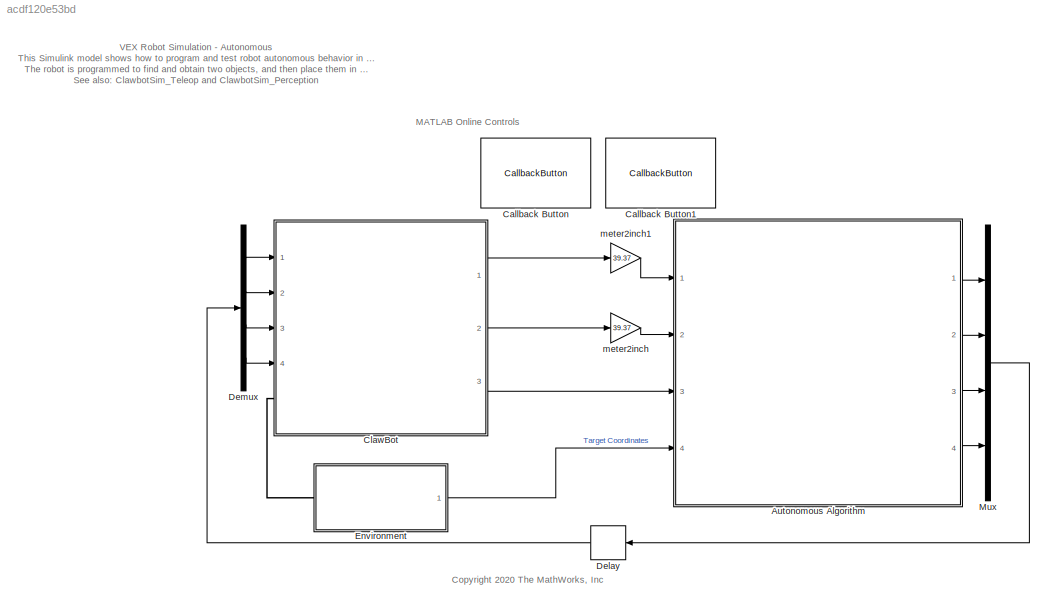
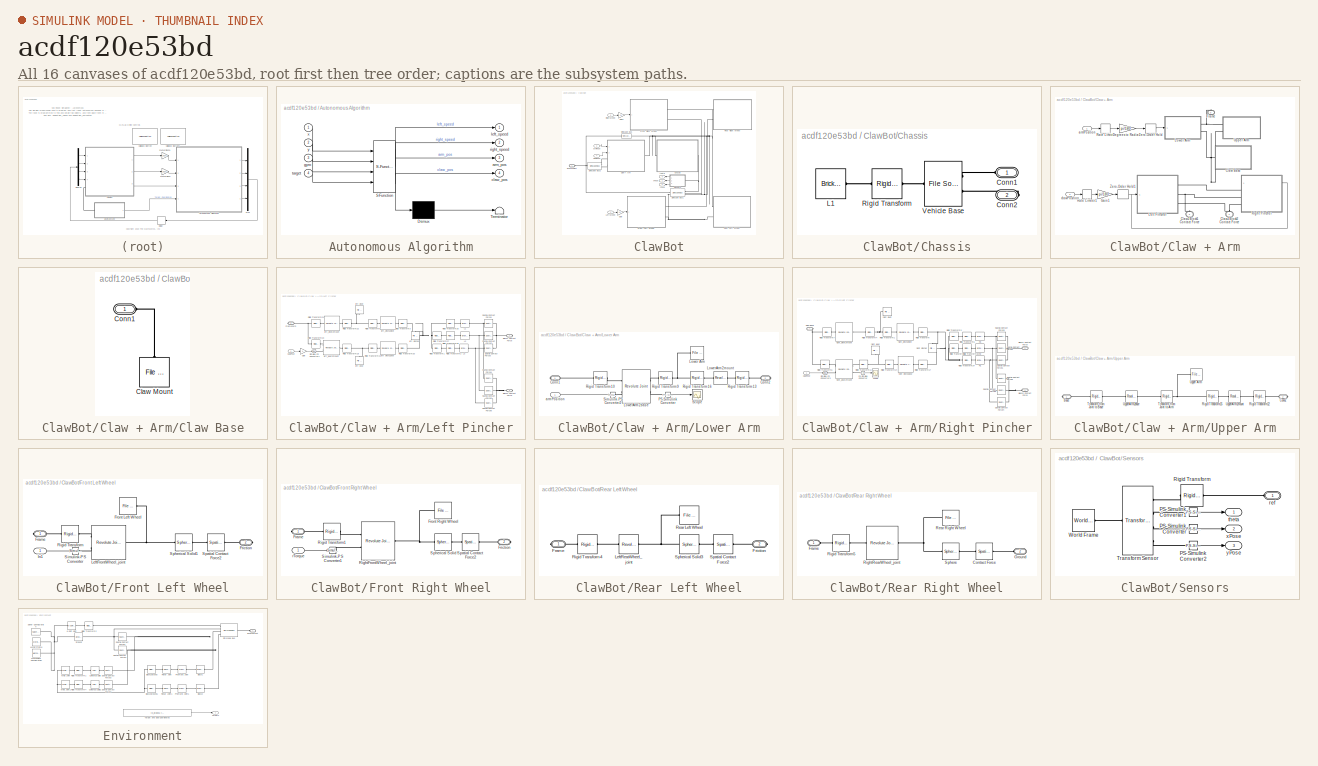
[diagram: thumbnail index - all 16 canvases of the model, root first then tree order]
MODEL slx_acdf120e53bd
KIND model
CONFIG AbsTol = auto
CONFIG EnableMultiTasking = off
CONFIG FixedStep = auto
CONFIG MaxStep = auto
CONFIG MinStep = auto
CONFIG RelTol = 1e-3
CONFIG SampleTimeConstraint = Unconstrained
CONFIG Solver = VariableStepAuto
CONFIG SolverName = VariableStepAuto
CONFIG StartTime = 0.0
CONFIG StopTime = 10.0
BLOCK [SubSystem] Autonomous Algorithm
  ErrorFcn = Stateflow.Translate.translate
  PermitHierarchicalResolution = ExplicitOnly
  Ports = [4, 4]
  RequestExecContextInheritance = off
  SFBlockType = Chart
  TreatAsAtomicUnit = on
BLOCK [Demux] Autonomous Algorithm/ Demux 
  DisplayOption = bar
  Outputs = 1
  Ports = [1, 1]
BLOCK [S-Function] Autonomous Algorithm/ SFunction 
  EnableBusSupport = on
  FunctionName = sf_sfun
  PortCounts = [4 5]
  Ports = [4, 5]
  SFcnIsStateOwnerBlock = off
  SFunctionDeploymentMode = off
  Tag = Stateflow S-Function 3
BLOCK [Terminator] Autonomous Algorithm/ Terminator 
BLOCK [Outport] Autonomous Algorithm/arm_pos
  IconDisplay = Port number
  Port = 3
BLOCK [Outport] Autonomous Algorithm/claw_pos
  IconDisplay = Port number
  Port = 4
BLOCK [Inport] Autonomous Algorithm/gyro
  IconDisplay = Port number
  Port = 3
BLOCK [Outport] Autonomous Algorithm/left_speed
  IconDisplay = Port number
BLOCK [Outport] Autonomous Algorithm/right_speed
  IconDisplay = Port number
  Port = 2
BLOCK [Inport] Autonomous Algorithm/target
  IconDisplay = Port number
  Port = 4
BLOCK [Inport] Autonomous Algorithm/x
  IconDisplay = Port number
BLOCK [Inport] Autonomous Algorithm/y
  IconDisplay = Port number
  Port = 2
BLOCK [CallbackButton] Callback Button
  ButtonText = Create Simulation Video
  ClickFcn = %% Simulate Model and Create Video\nmodel=gcs;\ndisp(['Simulating Model: ' model '...'])\nw=waitbar(0,['Simulating Model: ' model '...']);\nset_param(model, 'EnablePacing', 'off');\nsim(model);\nset_param(model, 'EnablePacing', 'on');\ndisp('Creating Simulation Video...')\nwaitbar(0.5,w,'Creating Simulation Video...')\nsmwritevideo(model,model,'FrameRate',16,'FrameSize',[1280 720],'Tile',1)\ndisp('Animation...<+111ch>
BLOCK [CallbackButton] Callback Button1
  ButtonText = Re-play Simulation Video
  ClickFcn = %% Playback Simulation Video\ndisp('Replaying Simulation Video...')\nvideoReader = VideoReader([gcs '.avi']);\nvideoPlayer = vision.VideoPlayer('Position',[100 100 1280 720]);\n\n% Play video. Every call to the step method reads another frame.\n\nwhile hasFrame(videoReader)\n   frame = readFrame(videoReader);\n   step(videoPlayer,frame);\n   pause(1/16);\nend\ndisp('Done replaying simulation video')
BLOCK [SubSystem] ClawBot
  Ports = [4, 3, 0, 0, 0, 1]
  RequestExecContextInheritance = off
BLOCK [SubSystem] ClawBot/Chassis
  Ports = [0, 0, 0, 0, 0, 1, 1]
  RequestExecContextInheritance = off
BLOCK [PMIOPort] ClawBot/Chassis/Conn1
  Side = Left
BLOCK [PMIOPort] ClawBot/Chassis/Conn2
  Port = 2
  Side = Right
BLOCK [Reference] ClawBot/Chassis/L1  REF=sm_lib/Body Elements/Brick Solid
  Ports = [0, 0, 0, 0, 0, 1]
  SourceBlock = sm_lib/Body Elements/Brick Solid
  SourceProductBaseCode = MS
  SourceProductName = Simscape Multibody
  SourceType = Brick Solid
BLOCK [Reference] ClawBot/Chassis/Rigid Transform  REF=sm_lib/Frames and
Transforms/Rigid
Transform
  Ports = [0, 0, 0, 0, 0, 1, 1]
  SourceBlock = sm_lib/Frames and\nTransforms/Rigid\nTransform
  SourceProductBaseCode = MS
  SourceProductName = Simscape Multibody
  SourceType = Rigid\nTransform
BLOCK [Reference] ClawBot/Chassis/Vehicle Base  REF=sm_lib/Body Elements/File Solid
  Ports = [0, 0, 0, 0, 0, 2, 1]
  SourceBlock = sm_lib/Body Elements/File Solid
  SourceProductBaseCode = MS
  SourceProductName = Simscape Multibody
  SourceType = File Solid
BLOCK [SubSystem] ClawBot/Claw + Arm
  Ports = [2, 0, 0, 0, 0, 2, 1]
  RequestExecContextInheritance = off
BLOCK [SubSystem] ClawBot/Claw + Arm/Claw Base
  Ports = [0, 0, 0, 0, 0, 1]
  RequestExecContextInheritance = off
BLOCK [Reference] ClawBot/Claw + Arm/Claw Base/Claw Mount  REF=sm_lib/Body Elements/File Solid
  Ports = [0, 0, 0, 0, 0, 1]
  SourceBlock = sm_lib/Body Elements/File Solid
  SourceProductBaseCode = MS
  SourceProductName = Simscape Multibody
  SourceType = File Solid
BLOCK [PMIOPort] ClawBot/Claw + Arm/Claw Base/Conn1
  Side = Left
BLOCK [PMIOPort] ClawBot/Claw + Arm/Claw2Block1 Contact Force
  Port = 2
  Side = Left
BLOCK [PMIOPort] ClawBot/Claw + Arm/Claw2Block2 Contact Force
  Side = Left
BLOCK [Gain] ClawBot/Claw + Arm/Degrees to Radians
  Gain = pi/180
  OutDataTypeStr = Inherit: Inherit via internal rule
  ParamDataTypeStr = Inherit: Inherit via internal rule
  SaturateOnIntegerOverflow = off
BLOCK [PMIOPort] ClawBot/Claw + Arm/Frame
  Port = 3
  Side = Right
BLOCK [Gain] ClawBot/Claw + Arm/Gain1
  Gain = pi/180
  OutDataTypeStr = Inherit: Inherit via internal rule
  ParamDataTypeStr = Inherit: Inherit via internal rule
  SaturateOnIntegerOverflow = off
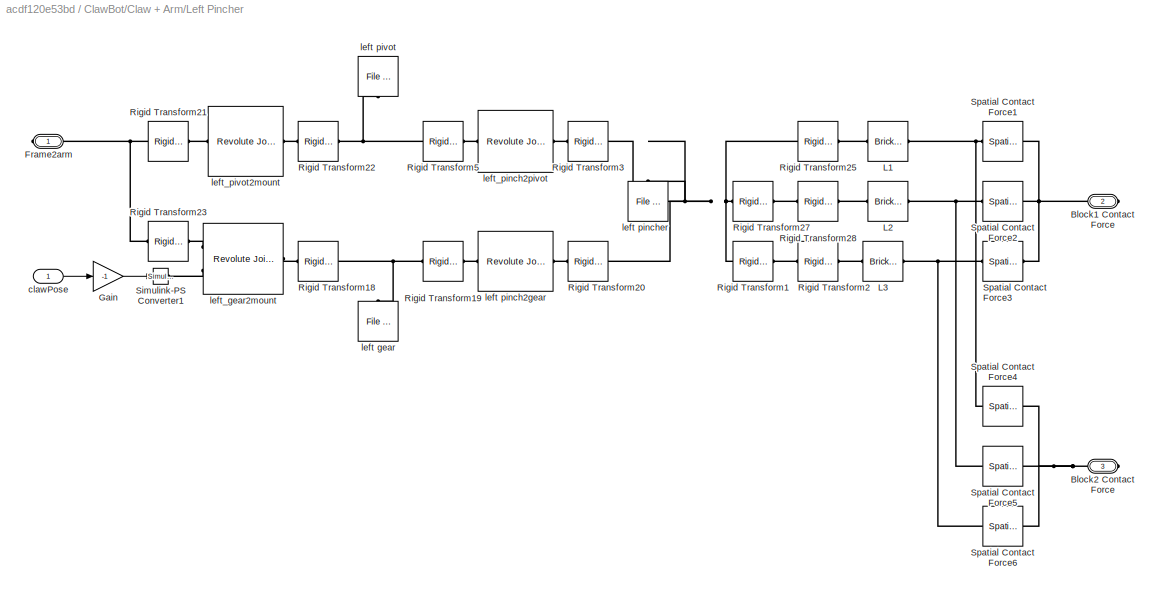
BLOCK [SubSystem] ClawBot/Claw + Arm/Left Pincher
  Ports = [1, 0, 0, 0, 0, 0, 3]
  RequestExecContextInheritance = off
BLOCK [PMIOPort] ClawBot/Claw + Arm/Left Pincher/Block1 Contact Force
  Port = 2
  Side = Right
BLOCK [PMIOPort] ClawBot/Claw + Arm/Left Pincher/Block2 Contact Force
  Port = 3
  Side = Right
BLOCK [PMIOPort] ClawBot/Claw + Arm/Left Pincher/Frame2arm
  Side = Right
BLOCK [Gain] ClawBot/Claw + Arm/Left Pincher/Gain
  Gain = -1
  OutDataTypeStr = Inherit: Inherit via internal rule
  ParamDataTypeStr = Inherit: Inherit via internal rule
  SaturateOnIntegerOverflow = off
BLOCK [Reference] ClawBot/Claw + Arm/Left Pincher/L1  REF=sm_lib/Body Elements/Brick Solid
  Ports = [0, 0, 0, 0, 0, 1, 1]
  SourceBlock = sm_lib/Body Elements/Brick Solid
  SourceProductBaseCode = MS
  SourceProductName = Simscape Multibody
  SourceType = Brick Solid
BLOCK [Reference] ClawBot/Claw + Arm/Left Pincher/L2  REF=sm_lib/Body Elements/Brick Solid
  Ports = [0, 0, 0, 0, 0, 1, 1]
  SourceBlock = sm_lib/Body Elements/Brick Solid
  SourceProductBaseCode = MS
  SourceProductName = Simscape Multibody
  SourceType = Brick Solid
BLOCK [Reference] ClawBot/Claw + Arm/Left Pincher/L3  REF=sm_lib/Body Elements/Brick Solid
  Ports = [0, 0, 0, 0, 0, 1, 1]
  SourceBlock = sm_lib/Body Elements/Brick Solid
  SourceProductBaseCode = MS
  SourceProductName = Simscape Multibody
  SourceType = Brick Solid
BLOCK [Reference] ClawBot/Claw + Arm/Left Pincher/Rigid Transform1  REF=sm_lib/Frames and
Transforms/Rigid
Transform
  Ports = [0, 0, 0, 0, 0, 1, 1]
  SourceBlock = sm_lib/Frames and\nTransforms/Rigid\nTransform
  SourceProductBaseCode = MS
  SourceProductName = Simscape Multibody
  SourceType = Rigid\nTransform
BLOCK [Reference] ClawBot/Claw + Arm/Left Pincher/Rigid Transform18  REF=sm_lib/Frames and
Transforms/Rigid
Transform
  Ports = [0, 0, 0, 0, 0, 1, 1]
  SourceBlock = sm_lib/Frames and\nTransforms/Rigid\nTransform
  SourceProductBaseCode = MS
  SourceProductName = Simscape Multibody
  SourceType = Rigid\nTransform
BLOCK [Reference] ClawBot/Claw + Arm/Left Pincher/Rigid Transform19  REF=sm_lib/Frames and
Transforms/Rigid
Transform
  Ports = [0, 0, 0, 0, 0, 1, 1]
  SourceBlock = sm_lib/Frames and\nTransforms/Rigid\nTransform
  SourceProductBaseCode = MS
  SourceProductName = Simscape Multibody
  SourceType = Rigid\nTransform
BLOCK [Reference] ClawBot/Claw + Arm/Left Pincher/Rigid Transform2  REF=sm_lib/Frames and
Transforms/Rigid
Transform
  Ports = [0, 0, 0, 0, 0, 1, 1]
  SourceBlock = sm_lib/Frames and\nTransforms/Rigid\nTransform
  SourceProductBaseCode = MS
  SourceProductName = Simscape Multibody
  SourceType = Rigid\nTransform
BLOCK [Reference] ClawBot/Claw + Arm/Left Pincher/Rigid Transform20  REF=sm_lib/Frames and
Transforms/Rigid
Transform
  Ports = [0, 0, 0, 0, 0, 1, 1]
  SourceBlock = sm_lib/Frames and\nTransforms/Rigid\nTransform
  SourceProductBaseCode = MS
  SourceProductName = Simscape Multibody
  SourceType = Rigid\nTransform
BLOCK [Reference] ClawBot/Claw + Arm/Left Pincher/Rigid Transform21  REF=sm_lib/Frames and
Transforms/Rigid
Transform
  Ports = [0, 0, 0, 0, 0, 1, 1]
  SourceBlock = sm_lib/Frames and\nTransforms/Rigid\nTransform
  SourceProductBaseCode = MS
  SourceProductName = Simscape Multibody
  SourceType = Rigid\nTransform
BLOCK [Reference] ClawBot/Claw + Arm/Left Pincher/Rigid Transform22  REF=sm_lib/Frames and
Transforms/Rigid
Transform
  Ports = [0, 0, 0, 0, 0, 1, 1]
  SourceBlock = sm_lib/Frames and\nTransforms/Rigid\nTransform
  SourceProductBaseCode = MS
  SourceProductName = Simscape Multibody
  SourceType = Rigid\nTransform
BLOCK [Reference] ClawBot/Claw + Arm/Left Pincher/Rigid Transform23  REF=sm_lib/Frames and
Transforms/Rigid
Transform
  Ports = [0, 0, 0, 0, 0, 1, 1]
  SourceBlock = sm_lib/Frames and\nTransforms/Rigid\nTransform
  SourceProductBaseCode = MS
  SourceProductName = Simscape Multibody
  SourceType = Rigid\nTransform
BLOCK [Reference] ClawBot/Claw + Arm/Left Pincher/Rigid Transform25  REF=sm_lib/Frames and
Transforms/Rigid
Transform
  Ports = [0, 0, 0, 0, 0, 1, 1]
  SourceBlock = sm_lib/Frames and\nTransforms/Rigid\nTransform
  SourceProductBaseCode = MS
  SourceProductName = Simscape Multibody
  SourceType = Rigid\nTransform
BLOCK [Reference] ClawBot/Claw + Arm/Left Pincher/Rigid Transform27  REF=sm_lib/Frames and
Transforms/Rigid
Transform
  Ports = [0, 0, 0, 0, 0, 1, 1]
  SourceBlock = sm_lib/Frames and\nTransforms/Rigid\nTransform
  SourceProductBaseCode = MS
  SourceProductName = Simscape Multibody
  SourceType = Rigid\nTransform
BLOCK [Reference] ClawBot/Claw + Arm/Left Pincher/Rigid Transform28  REF=sm_lib/Frames and
Transforms/Rigid
Transform
  Ports = [0, 0, 0, 0, 0, 1, 1]
  SourceBlock = sm_lib/Frames and\nTransforms/Rigid\nTransform
  SourceProductBaseCode = MS
  SourceProductName = Simscape Multibody
  SourceType = Rigid\nTransform
BLOCK [Reference] ClawBot/Claw + Arm/Left Pincher/Rigid Transform3  REF=sm_lib/Frames and
Transforms/Rigid
Transform
  Ports = [0, 0, 0, 0, 0, 1, 1]
  SourceBlock = sm_lib/Frames and\nTransforms/Rigid\nTransform
  SourceProductBaseCode = MS
  SourceProductName = Simscape Multibody
  SourceType = Rigid\nTransform
BLOCK [Reference] ClawBot/Claw + Arm/Left Pincher/Rigid Transform5  REF=sm_lib/Frames and
Transforms/Rigid
Transform
  Ports = [0, 0, 0, 0, 0, 1, 1]
  SourceBlock = sm_lib/Frames and\nTransforms/Rigid\nTransform
  SourceProductBaseCode = MS
  SourceProductName = Simscape Multibody
  SourceType = Rigid\nTransform
BLOCK [Reference] ClawBot/Claw + Arm/Left Pincher/Simulink-PS Converter1  REF=nesl_utility/Simulink-PS
Converter
  Ports = [1, 0, 0, 0, 0, 0, 1]
  SourceBlock = nesl_utility/Simulink-PS\nConverter
  SourceProductBaseCode = SS
  SourceProductName = Simscape
  SourceType = Simulink-PS\nConverter
BLOCK [Reference] ClawBot/Claw + Arm/Left Pincher/Spatial Contact Force1  REF=sm_lib/Forces and
Torques/Spatial
Contact Force
  Ports = [0, 0, 0, 0, 0, 1, 1]
  SourceBlock = sm_lib/Forces and\nTorques/Spatial\nContact Force
  SourceProductBaseCode = MS
  SourceProductName = Simscape Multibody
  SourceType = Spatial\nContact Force
BLOCK [Reference] ClawBot/Claw + Arm/Left Pincher/Spatial Contact Force2  REF=sm_lib/Forces and
Torques/Spatial
Contact Force
  Ports = [0, 0, 0, 0, 0, 1, 1]
  SourceBlock = sm_lib/Forces and\nTorques/Spatial\nContact Force
  SourceProductBaseCode = MS
  SourceProductName = Simscape Multibody
  SourceType = Spatial\nContact Force
BLOCK [Reference] ClawBot/Claw + Arm/Left Pincher/Spatial Contact Force3  REF=sm_lib/Forces and
Torques/Spatial
Contact Force
  Ports = [0, 0, 0, 0, 0, 1, 1]
  SourceBlock = sm_lib/Forces and\nTorques/Spatial\nContact Force
  SourceProductBaseCode = MS
  SourceProductName = Simscape Multibody
  SourceType = Spatial\nContact Force
BLOCK [Reference] ClawBot/Claw + Arm/Left Pincher/Spatial Contact Force4  REF=sm_lib/Forces and
Torques/Spatial
Contact Force
  Ports = [0, 0, 0, 0, 0, 1, 1]
  SourceBlock = sm_lib/Forces and\nTorques/Spatial\nContact Force
  SourceProductBaseCode = MS
  SourceProductName = Simscape Multibody
  SourceType = Spatial\nContact Force
BLOCK [Reference] ClawBot/Claw + Arm/Left Pincher/Spatial Contact Force5  REF=sm_lib/Forces and
Torques/Spatial
Contact Force
  Ports = [0, 0, 0, 0, 0, 1, 1]
  SourceBlock = sm_lib/Forces and\nTorques/Spatial\nContact Force
  SourceProductBaseCode = MS
  SourceProductName = Simscape Multibody
  SourceType = Spatial\nContact Force
BLOCK [Reference] ClawBot/Claw + Arm/Left Pincher/Spatial Contact Force6  REF=sm_lib/Forces and
Torques/Spatial
Contact Force
  Ports = [0, 0, 0, 0, 0, 1, 1]
  SourceBlock = sm_lib/Forces and\nTorques/Spatial\nContact Force
  SourceProductBaseCode = MS
  SourceProductName = Simscape Multibody
  SourceType = Spatial\nContact Force
BLOCK [Inport] ClawBot/Claw + Arm/Left Pincher/clawPose
  IconDisplay = Port number
BLOCK [Reference] ClawBot/Claw + Arm/Left Pincher/left gear  REF=sm_lib/Body Elements/File Solid
  Ports = [0, 0, 0, 0, 0, 1]
  SourceBlock = sm_lib/Body Elements/File Solid
  SourceProductBaseCode = MS
  SourceProductName = Simscape Multibody
  SourceType = File Solid
BLOCK [Reference] ClawBot/Claw + Arm/Left Pincher/left pinch2gear  REF=sm_lib/Joints/Revolute Joint
  Ports = [0, 0, 0, 0, 0, 1, 1]
  SourceBlock = sm_lib/Joints/Revolute Joint
  SourceProductBaseCode = MS
  SourceProductName = Simscape Multibody
  SourceType = Revolute Joint
BLOCK [Reference] ClawBot/Claw + Arm/Left Pincher/left pincher  REF=sm_lib/Body Elements/File Solid
  Ports = [0, 0, 0, 0, 0, 1]
  SourceBlock = sm_lib/Body Elements/File Solid
  SourceProductBaseCode = MS
  SourceProductName = Simscape Multibody
  SourceType = File Solid
BLOCK [Reference] ClawBot/Claw + Arm/Left Pincher/left pivot  REF=sm_lib/Body Elements/File Solid
  Ports = [0, 0, 0, 0, 0, 1]
  SourceBlock = sm_lib/Body Elements/File Solid
  SourceProductBaseCode = MS
  SourceProductName = Simscape Multibody
  SourceType = File Solid
BLOCK [Reference] ClawBot/Claw + Arm/Left Pincher/left_gear2mount  REF=sm_lib/Joints/Revolute Joint
  Ports = [0, 0, 0, 0, 0, 2, 1]
  SourceBlock = sm_lib/Joints/Revolute Joint
  SourceProductBaseCode = MS
  SourceProductName = Simscape Multibody
  SourceType = Revolute Joint
BLOCK [Reference] ClawBot/Claw + Arm/Left Pincher/left_pinch2pivot  REF=sm_lib/Joints/Revolute Joint
  Ports = [0, 0, 0, 0, 0, 1, 1]
  SourceBlock = sm_lib/Joints/Revolute Joint
  SourceProductBaseCode = MS
  SourceProductName = Simscape Multibody
  SourceType = Revolute Joint
BLOCK [Reference] ClawBot/Claw + Arm/Left Pincher/left_pivot2mount  REF=sm_lib/Joints/Revolute Joint
  Ports = [0, 0, 0, 0, 0, 1, 1]
  SourceBlock = sm_lib/Joints/Revolute Joint
  SourceProductBaseCode = MS
  SourceProductName = Simscape Multibody
  SourceType = Revolute Joint
BLOCK [SubSystem] ClawBot/Claw + Arm/Lower Arm
  Ports = [1, 0, 0, 0, 0, 0, 2]
  RequestExecContextInheritance = off
BLOCK [PMIOPort] ClawBot/Claw + Arm/Lower Arm/Conn1
  Side = Right
BLOCK [PMIOPort] ClawBot/Claw + Arm/Lower Arm/Conn2
  Port = 2
  Side = Right
BLOCK [Reference] ClawBot/Claw + Arm/Lower Arm/Lower Arm  REF=sm_lib/Body Elements/File Solid
  Ports = [0, 0, 0, 0, 0, 1]
  SourceBlock = sm_lib/Body Elements/File Solid
  SourceProductBaseCode = MS
  SourceProductName = Simscape Multibody
  SourceType = File Solid
BLOCK [Reference] ClawBot/Claw + Arm/Lower Arm/LowerArm2base  REF=sm_lib/Joints/Revolute Joint
  Ports = [0, 0, 0, 0, 0, 2, 2]
  SourceBlock = sm_lib/Joints/Revolute Joint
  SourceProductBaseCode = MS
  SourceProductName = Simscape Multibody
  SourceType = Revolute Joint
BLOCK [Reference] ClawBot/Claw + Arm/Lower Arm/LowerArm2mount  REF=sm_lib/Joints/Revolute Joint
  Ports = [0, 0, 0, 0, 0, 1, 1]
  SourceBlock = sm_lib/Joints/Revolute Joint
  SourceProductBaseCode = MS
  SourceProductName = Simscape Multibody
  SourceType = Revolute Joint
BLOCK [Reference] ClawBot/Claw + Arm/Lower Arm/PS-Simulink Converter  REF=nesl_utility/PS-Simulink
Converter
  Ports = [0, 1, 0, 0, 0, 1]
  SourceBlock = nesl_utility/PS-Simulink\nConverter
  SourceProductBaseCode = SS
  SourceProductName = Simscape
  SourceType = PS-Simulink\nConverter
BLOCK [Reference] ClawBot/Claw + Arm/Lower Arm/Rigid Transform10  REF=sm_lib/Frames and
Transforms/Rigid
Transform
  Ports = [0, 0, 0, 0, 0, 1, 1]
  SourceBlock = sm_lib/Frames and\nTransforms/Rigid\nTransform
  SourceProductBaseCode = MS
  SourceProductName = Simscape Multibody
  SourceType = Rigid\nTransform
BLOCK [Reference] ClawBot/Claw + Arm/Lower Arm/Rigid Transform13  REF=sm_lib/Frames and
Transforms/Rigid
Transform
  Ports = [0, 0, 0, 0, 0, 1, 1]
  SourceBlock = sm_lib/Frames and\nTransforms/Rigid\nTransform
  SourceProductBaseCode = MS
  SourceProductName = Simscape Multibody
  SourceType = Rigid\nTransform
BLOCK [Reference] ClawBot/Claw + Arm/Lower Arm/Rigid Transform16  REF=sm_lib/Frames and
Transforms/Rigid
Transform
  Ports = [0, 0, 0, 0, 0, 1, 1]
  SourceBlock = sm_lib/Frames and\nTransforms/Rigid\nTransform
  SourceProductBaseCode = MS
  SourceProductName = Simscape Multibody
  SourceType = Rigid\nTransform
BLOCK [Reference] ClawBot/Claw + Arm/Lower Arm/Rigid Transform9  REF=sm_lib/Frames and
Transforms/Rigid
Transform
  Ports = [0, 0, 0, 0, 0, 1, 1]
  SourceBlock = sm_lib/Frames and\nTransforms/Rigid\nTransform
  SourceProductBaseCode = MS
  SourceProductName = Simscape Multibody
  SourceType = Rigid\nTransform
BLOCK [Scope] ClawBot/Claw + Arm/Lower Arm/Scope
  Floating = off
  NumInputPorts = 1
  Ports = [1]
  ScopeSpecificationString = Simulink.scopes.TimeScopeBlockCfg('CurrentConfiguration', extmgr.ConfigurationSet(extmgr.Configuration('Core','General UI',true),extmgr.Configuration('Core','Source UI',true),extmgr.Configuration('Sources','WiredSimulink',true),extmgr.Configuration('Visuals','Time Domain',true,'SerializedDisplays',{struct('MinYLimReal','-101.85053','MaxYLimReal','95.32252','YLabelReal','','MinYLimMag',' 0.00000','...<+1380ch>
BLOCK [Reference] ClawBot/Claw + Arm/Lower Arm/Simulink-PS Converter2  REF=nesl_utility/Simulink-PS
Converter
  Ports = [1, 0, 0, 0, 0, 0, 1]
  SourceBlock = nesl_utility/Simulink-PS\nConverter
  SourceProductBaseCode = SS
  SourceProductName = Simscape
  SourceType = Simulink-PS\nConverter
BLOCK [Inport] ClawBot/Claw + Arm/Lower Arm/armPosition
  IconDisplay = Port number
BLOCK [RateLimiter] ClawBot/Claw + Arm/Rate Limiter
  FallingSlewLimit = -25
  RisingSlewLimit = 25
  SampleTimeMode = inherited
BLOCK [RateLimiter] ClawBot/Claw + Arm/Rate Limiter1
  FallingSlewLimit = -1000
  RisingSlewLimit = 1000
  SampleTimeMode = inherited
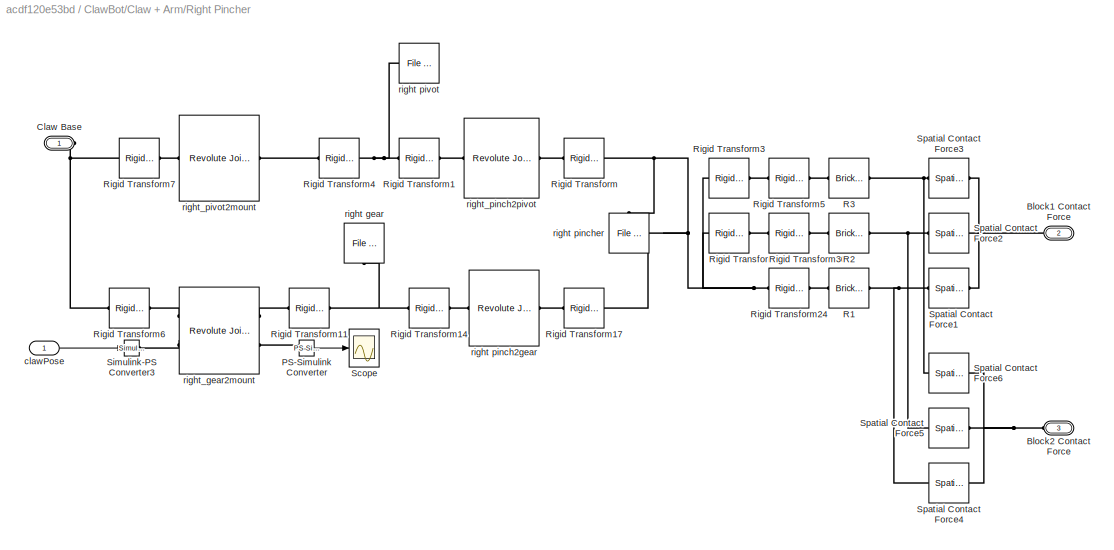
BLOCK [SubSystem] ClawBot/Claw + Arm/Right Pincher
  PortSchema = {"entries":[{"content":{"sides":[{"content":{"connectorIds":["LConn1","LConn2","LConn3"]},"type":"ConnectorPlacement.EquallySpacedRectSide","uuid":"c31b3bd7-e4f0-40c1-8d05-2dd0f52601d0"},{"content":{"connectorIds":["In1"],"side":"RIGHT"},"type":"ConnectorPlacement.EquallySpacedRectSide","uuid":"b782f98b-67c6-482a-abad-dffd6dc88c6a"},{"content":{"connectorIds":[],"side":"TOP"},"type":"ConnectorPlac...<+262ch>
  Ports = [1, 0, 0, 0, 0, 3]
  RequestExecContextInheritance = off
BLOCK [PMIOPort] ClawBot/Claw + Arm/Right Pincher/Block1 Contact Force
  Port = 2
  Side = Left
BLOCK [PMIOPort] ClawBot/Claw + Arm/Right Pincher/Block2 Contact Force
  Port = 3
  Side = Left
BLOCK [PMIOPort] ClawBot/Claw + Arm/Right Pincher/Claw Base
  Side = Left
BLOCK [Reference] ClawBot/Claw + Arm/Right Pincher/PS-Simulink Converter  REF=nesl_utility/PS-Simulink
Converter
  Ports = [0, 1, 0, 0, 0, 1]
  SourceBlock = nesl_utility/PS-Simulink\nConverter
  SourceProductBaseCode = SS
  SourceProductName = Simscape
  SourceType = PS-Simulink\nConverter
BLOCK [Reference] ClawBot/Claw + Arm/Right Pincher/R1  REF=sm_lib/Body Elements/Brick Solid
  Ports = [0, 0, 0, 0, 0, 1, 1]
  SourceBlock = sm_lib/Body Elements/Brick Solid
  SourceProductBaseCode = MS
  SourceProductName = Simscape Multibody
  SourceType = Brick Solid
BLOCK [Reference] ClawBot/Claw + Arm/Right Pincher/R2  REF=sm_lib/Body Elements/Brick Solid
  Ports = [0, 0, 0, 0, 0, 1, 1]
  SourceBlock = sm_lib/Body Elements/Brick Solid
  SourceProductBaseCode = MS
  SourceProductName = Simscape Multibody
  SourceType = Brick Solid
BLOCK [Reference] ClawBot/Claw + Arm/Right Pincher/R3  REF=sm_lib/Body Elements/Brick Solid
  Ports = [0, 0, 0, 0, 0, 1, 1]
  SourceBlock = sm_lib/Body Elements/Brick Solid
  SourceProductBaseCode = MS
  SourceProductName = Simscape Multibody
  SourceType = Brick Solid
BLOCK [Reference] ClawBot/Claw + Arm/Right Pincher/Rigid Transform  REF=sm_lib/Frames and
Transforms/Rigid
Transform
  Ports = [0, 0, 0, 0, 0, 1, 1]
  SourceBlock = sm_lib/Frames and\nTransforms/Rigid\nTransform
  SourceProductBaseCode = MS
  SourceProductName = Simscape Multibody
  SourceType = Rigid\nTransform
BLOCK [Reference] ClawBot/Claw + Arm/Right Pincher/Rigid Transform1  REF=sm_lib/Frames and
Transforms/Rigid
Transform
  Ports = [0, 0, 0, 0, 0, 1, 1]
  SourceBlock = sm_lib/Frames and\nTransforms/Rigid\nTransform
  SourceProductBaseCode = MS
  SourceProductName = Simscape Multibody
  SourceType = Rigid\nTransform
BLOCK [Reference] ClawBot/Claw + Arm/Right Pincher/Rigid Transform11  REF=sm_lib/Frames and
Transforms/Rigid
Transform
  Ports = [0, 0, 0, 0, 0, 1, 1]
  SourceBlock = sm_lib/Frames and\nTransforms/Rigid\nTransform
  SourceProductBaseCode = MS
  SourceProductName = Simscape Multibody
  SourceType = Rigid\nTransform
BLOCK [Reference] ClawBot/Claw + Arm/Right Pincher/Rigid Transform14  REF=sm_lib/Frames and
Transforms/Rigid
Transform
  Ports = [0, 0, 0, 0, 0, 1, 1]
  SourceBlock = sm_lib/Frames and\nTransforms/Rigid\nTransform
  SourceProductBaseCode = MS
  SourceProductName = Simscape Multibody
  SourceType = Rigid\nTransform
BLOCK [Reference] ClawBot/Claw + Arm/Right Pincher/Rigid Transform17  REF=sm_lib/Frames and
Transforms/Rigid
Transform
  Ports = [0, 0, 0, 0, 0, 1, 1]
  SourceBlock = sm_lib/Frames and\nTransforms/Rigid\nTransform
  SourceProductBaseCode = MS
  SourceProductName = Simscape Multibody
  SourceType = Rigid\nTransform
BLOCK [Reference] ClawBot/Claw + Arm/Right Pincher/Rigid Transform24  REF=sm_lib/Frames and
Transforms/Rigid
Transform
  Ports = [0, 0, 0, 0, 0, 1, 1]
  SourceBlock = sm_lib/Frames and\nTransforms/Rigid\nTransform
  SourceProductBaseCode = MS
  SourceProductName = Simscape Multibody
  SourceType = Rigid\nTransform
BLOCK [Reference] ClawBot/Claw + Arm/Right Pincher/Rigid Transform29  REF=sm_lib/Frames and
Transforms/Rigid
Transform
  Ports = [0, 0, 0, 0, 0, 1, 1]
  SourceBlock = sm_lib/Frames and\nTransforms/Rigid\nTransform
  SourceProductBaseCode = MS
  SourceProductName = Simscape Multibody
  SourceType = Rigid\nTransform
BLOCK [Reference] ClawBot/Claw + Arm/Right Pincher/Rigid Transform3  REF=sm_lib/Frames and
Transforms/Rigid
Transform
  Ports = [0, 0, 0, 0, 0, 1, 1]
  SourceBlock = sm_lib/Frames and\nTransforms/Rigid\nTransform
  SourceProductBaseCode = MS
  SourceProductName = Simscape Multibody
  SourceType = Rigid\nTransform
BLOCK [Reference] ClawBot/Claw + Arm/Right Pincher/Rigid Transform30  REF=sm_lib/Frames and
Transforms/Rigid
Transform
  Ports = [0, 0, 0, 0, 0, 1, 1]
  SourceBlock = sm_lib/Frames and\nTransforms/Rigid\nTransform
  SourceProductBaseCode = MS
  SourceProductName = Simscape Multibody
  SourceType = Rigid\nTransform
BLOCK [Reference] ClawBot/Claw + Arm/Right Pincher/Rigid Transform4  REF=sm_lib/Frames and
Transforms/Rigid
Transform
  Ports = [0, 0, 0, 0, 0, 1, 1]
  SourceBlock = sm_lib/Frames and\nTransforms/Rigid\nTransform
  SourceProductBaseCode = MS
  SourceProductName = Simscape Multibody
  SourceType = Rigid\nTransform
BLOCK [Reference] ClawBot/Claw + Arm/Right Pincher/Rigid Transform5  REF=sm_lib/Frames and
Transforms/Rigid
Transform
  Ports = [0, 0, 0, 0, 0, 1, 1]
  SourceBlock = sm_lib/Frames and\nTransforms/Rigid\nTransform
  SourceProductBaseCode = MS
  SourceProductName = Simscape Multibody
  SourceType = Rigid\nTransform
BLOCK [Reference] ClawBot/Claw + Arm/Right Pincher/Rigid Transform6  REF=sm_lib/Frames and
Transforms/Rigid
Transform
  Ports = [0, 0, 0, 0, 0, 1, 1]
  SourceBlock = sm_lib/Frames and\nTransforms/Rigid\nTransform
  SourceProductBaseCode = MS
  SourceProductName = Simscape Multibody
  SourceType = Rigid\nTransform
BLOCK [Reference] ClawBot/Claw + Arm/Right Pincher/Rigid Transform7  REF=sm_lib/Frames and
Transforms/Rigid
Transform
  Ports = [0, 0, 0, 0, 0, 1, 1]
  SourceBlock = sm_lib/Frames and\nTransforms/Rigid\nTransform
  SourceProductBaseCode = MS
  SourceProductName = Simscape Multibody
  SourceType = Rigid\nTransform
BLOCK [Scope] ClawBot/Claw + Arm/Right Pincher/Scope
  Floating = off
  NumInputPorts = 1
  Ports = [1]
  ScopeSpecificationString = Simulink.scopes.TimeScopeBlockCfg('CurrentConfiguration', extmgr.ConfigurationSet(extmgr.Configuration('Core','General UI',true),extmgr.Configuration('Core','Source UI',true),extmgr.Configuration('Sources','WiredSimulink',true,'DataLoggingVariableName','ScopeData4'),extmgr.Configuration('Visuals','Time Domain',true,'SerializedDisplays',{struct('MinYLimReal','-826.00645','MaxYLimReal','891.95562','...<+1422ch>
BLOCK [Reference] ClawBot/Claw + Arm/Right Pincher/Simulink-PS Converter3  REF=nesl_utility/Simulink-PS
Converter
  Ports = [1, 0, 0, 0, 0, 0, 1]
  SourceBlock = nesl_utility/Simulink-PS\nConverter
  SourceProductBaseCode = SS
  SourceProductName = Simscape
  SourceType = Simulink-PS\nConverter
BLOCK [Reference] ClawBot/Claw + Arm/Right Pincher/Spatial Contact Force1  REF=sm_lib/Forces and
Torques/Spatial
Contact Force
  Ports = [0, 0, 0, 0, 0, 1, 1]
  SourceBlock = sm_lib/Forces and\nTorques/Spatial\nContact Force
  SourceProductBaseCode = MS
  SourceProductName = Simscape Multibody
  SourceType = Spatial\nContact Force
BLOCK [Reference] ClawBot/Claw + Arm/Right Pincher/Spatial Contact Force2  REF=sm_lib/Forces and
Torques/Spatial
Contact Force
  Ports = [0, 0, 0, 0, 0, 1, 1]
  SourceBlock = sm_lib/Forces and\nTorques/Spatial\nContact Force
  SourceProductBaseCode = MS
  SourceProductName = Simscape Multibody
  SourceType = Spatial\nContact Force
BLOCK [Reference] ClawBot/Claw + Arm/Right Pincher/Spatial Contact Force3  REF=sm_lib/Forces and
Torques/Spatial
Contact Force
  Ports = [0, 0, 0, 0, 0, 1, 1]
  SourceBlock = sm_lib/Forces and\nTorques/Spatial\nContact Force
  SourceProductBaseCode = MS
  SourceProductName = Simscape Multibody
  SourceType = Spatial\nContact Force
BLOCK [Reference] ClawBot/Claw + Arm/Right Pincher/Spatial Contact Force4  REF=sm_lib/Forces and
Torques/Spatial
Contact Force
  Ports = [0, 0, 0, 0, 0, 1, 1]
  SourceBlock = sm_lib/Forces and\nTorques/Spatial\nContact Force
  SourceProductBaseCode = MS
  SourceProductName = Simscape Multibody
  SourceType = Spatial\nContact Force
BLOCK [Reference] ClawBot/Claw + Arm/Right Pincher/Spatial Contact Force5  REF=sm_lib/Forces and
Torques/Spatial
Contact Force
  Ports = [0, 0, 0, 0, 0, 1, 1]
  SourceBlock = sm_lib/Forces and\nTorques/Spatial\nContact Force
  SourceProductBaseCode = MS
  SourceProductName = Simscape Multibody
  SourceType = Spatial\nContact Force
BLOCK [Reference] ClawBot/Claw + Arm/Right Pincher/Spatial Contact Force6  REF=sm_lib/Forces and
Torques/Spatial
Contact Force
  Ports = [0, 0, 0, 0, 0, 1, 1]
  SourceBlock = sm_lib/Forces and\nTorques/Spatial\nContact Force
  SourceProductBaseCode = MS
  SourceProductName = Simscape Multibody
  SourceType = Spatial\nContact Force
BLOCK [Inport] ClawBot/Claw + Arm/Right Pincher/clawPose
  IconDisplay = Port number
BLOCK [Reference] ClawBot/Claw + Arm/Right Pincher/right gear  REF=sm_lib/Body Elements/File Solid
  Ports = [0, 0, 0, 0, 0, 1]
  SourceBlock = sm_lib/Body Elements/File Solid
  SourceProductBaseCode = MS
  SourceProductName = Simscape Multibody
  SourceType = File Solid
BLOCK [Reference] ClawBot/Claw + Arm/Right Pincher/right pinch2gear  REF=sm_lib/Joints/Revolute Joint
  Ports = [0, 0, 0, 0, 0, 1, 1]
  SourceBlock = sm_lib/Joints/Revolute Joint
  SourceProductBaseCode = MS
  SourceProductName = Simscape Multibody
  SourceType = Revolute Joint
BLOCK [Reference] ClawBot/Claw + Arm/Right Pincher/right pincher  REF=sm_lib/Body Elements/File Solid
  Ports = [0, 0, 0, 0, 0, 1]
  SourceBlock = sm_lib/Body Elements/File Solid
  SourceProductBaseCode = MS
  SourceProductName = Simscape Multibody
  SourceType = File Solid
BLOCK [Reference] ClawBot/Claw + Arm/Right Pincher/right pivot  REF=sm_lib/Body Elements/File Solid
  Ports = [0, 0, 0, 0, 0, 1]
  SourceBlock = sm_lib/Body Elements/File Solid
  SourceProductBaseCode = MS
  SourceProductName = Simscape Multibody
  SourceType = File Solid
BLOCK [Reference] ClawBot/Claw + Arm/Right Pincher/right_gear2mount  REF=sm_lib/Joints/Revolute Joint
  Ports = [0, 0, 0, 0, 0, 2, 2]
  SourceBlock = sm_lib/Joints/Revolute Joint
  SourceProductBaseCode = MS
  SourceProductName = Simscape Multibody
  SourceType = Revolute Joint
BLOCK [Reference] ClawBot/Claw + Arm/Right Pincher/right_pinch2pivot  REF=sm_lib/Joints/Revolute Joint
  Ports = [0, 0, 0, 0, 0, 1, 1]
  SourceBlock = sm_lib/Joints/Revolute Joint
  SourceProductBaseCode = MS
  SourceProductName = Simscape Multibody
  SourceType = Revolute Joint
BLOCK [Reference] ClawBot/Claw + Arm/Right Pincher/right_pivot2mount  REF=sm_lib/Joints/Revolute Joint
  Ports = [0, 0, 0, 0, 0, 1, 1]
  SourceBlock = sm_lib/Joints/Revolute Joint
  SourceProductBaseCode = MS
  SourceProductName = Simscape Multibody
  SourceType = Revolute Joint
BLOCK [SubSystem] ClawBot/Claw + Arm/Upper Arm
  Ports = [0, 0, 0, 0, 0, 0, 2]
  RequestExecContextInheritance = off
BLOCK [PMIOPort] ClawBot/Claw + Arm/Upper Arm/Base
  Side = Right
BLOCK [PMIOPort] ClawBot/Claw + Arm/Upper Arm/Conn2
  Port = 2
  Side = Right
BLOCK [Reference] ClawBot/Claw + Arm/Upper Arm/Rigid Transform12  REF=sm_lib/Frames and
Transforms/Rigid
Transform
  Ports = [0, 0, 0, 0, 0, 1, 1]
  SourceBlock = sm_lib/Frames and\nTransforms/Rigid\nTransform
  SourceProductBaseCode = MS
  SourceProductName = Simscape Multibody
  SourceType = Rigid\nTransform
BLOCK [Reference] ClawBot/Claw + Arm/Upper Arm/Rigid Transform15  REF=sm_lib/Frames and
Transforms/Rigid
Transform
  Ports = [0, 0, 0, 0, 0, 1, 1]
  SourceBlock = sm_lib/Frames and\nTransforms/Rigid\nTransform
  SourceProductBaseCode = MS
  SourceProductName = Simscape Multibody
  SourceType = Rigid\nTransform
BLOCK [Reference] ClawBot/Claw + Arm/Upper Arm/Transform from Joint to Arm  REF=sm_lib/Frames and
Transforms/Rigid
Transform
  Ports = [0, 0, 0, 0, 0, 1, 1]
  SourceBlock = sm_lib/Frames and\nTransforms/Rigid\nTransform
  SourceProductBaseCode = MS
  SourceProductName = Simscape Multibody
  SourceType = Rigid\nTransform
BLOCK [Reference] ClawBot/Claw + Arm/Upper Arm/Transform from Joint to Base  REF=sm_lib/Frames and
Transforms/Rigid
Transform
  Ports = [0, 0, 0, 0, 0, 1, 1]
  SourceBlock = sm_lib/Frames and\nTransforms/Rigid\nTransform
  SourceProductBaseCode = MS
  SourceProductName = Simscape Multibody
  SourceType = Rigid\nTransform
BLOCK [Reference] ClawBot/Claw + Arm/Upper Arm/Upper Arm  REF=sm_lib/Body Elements/File Solid
  Ports = [0, 0, 0, 0, 0, 1]
  SourceBlock = sm_lib/Body Elements/File Solid
  SourceProductBaseCode = MS
  SourceProductName = Simscape Multibody
  SourceType = File Solid
BLOCK [Reference] ClawBot/Claw + Arm/Upper Arm/UpperArm2base  REF=sm_lib/Joints/Revolute Joint
  Ports = [0, 0, 0, 0, 0, 1, 1]
  SourceBlock = sm_lib/Joints/Revolute Joint
  SourceProductBaseCode = MS
  SourceProductName = Simscape Multibody
  SourceType = Revolute Joint
BLOCK [Reference] ClawBot/Claw + Arm/Upper Arm/UpperArm2mount  REF=sm_lib/Joints/Revolute Joint
  Ports = [0, 0, 0, 0, 0, 1, 1]
  SourceBlock = sm_lib/Joints/Revolute Joint
  SourceProductBaseCode = MS
  SourceProductName = Simscape Multibody
  SourceType = Revolute Joint
BLOCK [ZeroOrderHold] ClawBot/Claw + Arm/Zero-Order Hold
  SampleTime = -1
BLOCK [ZeroOrderHold] ClawBot/Claw + Arm/Zero-Order Hold1
  SampleTime = -1
BLOCK [Inport] ClawBot/Claw + Arm/armPosition
  IconDisplay = Port number
BLOCK [Inport] ClawBot/Claw + Arm/clawPosition
  IconDisplay = Port number
  Port = 2
BLOCK [PMIOPort] ClawBot/Environment
  Side = Left
BLOCK [SubSystem] ClawBot/Front Left Wheel
  Ports = [1, 0, 0, 0, 0, 0, 2]
  RequestExecContextInheritance = off
BLOCK [PMIOPort] ClawBot/Front Left Wheel/Frame
  Side = Right
BLOCK [PMIOPort] ClawBot/Front Left Wheel/Friction
  Port = 2
  Side = Right
BLOCK [Reference] ClawBot/Front Left Wheel/Front Left Wheel  REF=sm_lib/Body Elements/File Solid
  Ports = [0, 0, 0, 0, 0, 1]
  SourceBlock = sm_lib/Body Elements/File Solid
  SourceProductBaseCode = MS
  SourceProductName = Simscape Multibody
  SourceType = File Solid
BLOCK [Inport] ClawBot/Front Left Wheel/In1
  IconDisplay = Port number
BLOCK [Reference] ClawBot/Front Left Wheel/LeftFrontWheel_joint  REF=sm_lib/Joints/Revolute Joint
  Ports = [0, 0, 0, 0, 0, 2, 1]
  SourceBlock = sm_lib/Joints/Revolute Joint
  SourceProductBaseCode = MS
  SourceProductName = Simscape Multibody
  SourceType = Revolute Joint
BLOCK [Reference] ClawBot/Front Left Wheel/Rigid Transform  REF=sm_lib/Frames and
Transforms/Rigid
Transform
  Ports = [0, 0, 0, 0, 0, 1, 1]
  SourceBlock = sm_lib/Frames and\nTransforms/Rigid\nTransform
  SourceProductBaseCode = MS
  SourceProductName = Simscape Multibody
  SourceType = Rigid\nTransform
BLOCK [Reference] ClawBot/Front Left Wheel/Simulink-PS Converter  REF=nesl_utility/Simulink-PS
Converter
  Ports = [1, 0, 0, 0, 0, 0, 1]
  SourceBlock = nesl_utility/Simulink-PS\nConverter
  SourceProductBaseCode = SS
  SourceProductName = Simscape
  SourceType = Simulink-PS\nConverter
BLOCK [Reference] ClawBot/Front Left Wheel/Spatial Contact Force2  REF=sm_lib/Forces and
Torques/Spatial
Contact Force
  Ports = [0, 0, 0, 0, 0, 1, 1]
  SourceBlock = sm_lib/Forces and\nTorques/Spatial\nContact Force
  SourceProductBaseCode = MS
  SourceProductName = Simscape Multibody
  SourceType = Spatial\nContact Force
BLOCK [Reference] ClawBot/Front Left Wheel/Spherical Solid1  REF=sm_lib/Body Elements/Spherical Solid
  Ports = [0, 0, 0, 0, 0, 1, 1]
  SourceBlock = sm_lib/Body Elements/Spherical Solid
  SourceProductBaseCode = MS
  SourceProductName = Simscape Multibody
  SourceType = Spherical Solid
BLOCK [SubSystem] ClawBot/Front Right Wheel
  Ports = [1, 0, 0, 0, 0, 0, 2]
  RequestExecContextInheritance = off
BLOCK [PMIOPort] ClawBot/Front Right Wheel/Frame
  Side = Right
BLOCK [PMIOPort] ClawBot/Front Right Wheel/Friction
  Port = 2
  Side = Right
BLOCK [Reference] ClawBot/Front Right Wheel/Front Right Wheel  REF=sm_lib/Body Elements/File Solid
  Ports = [0, 0, 0, 0, 0, 1]
  SourceBlock = sm_lib/Body Elements/File Solid
  SourceProductBaseCode = MS
  SourceProductName = Simscape Multibody
  SourceType = File Solid
BLOCK [Reference] ClawBot/Front Right Wheel/RightFrontWheel_joint  REF=sm_lib/Joints/Revolute Joint
  Ports = [0, 0, 0, 0, 0, 2, 1]
  SourceBlock = sm_lib/Joints/Revolute Joint
  SourceProductBaseCode = MS
  SourceProductName = Simscape Multibody
  SourceType = Revolute Joint
BLOCK [Reference] ClawBot/Front Right Wheel/Rigid Transform1  REF=sm_lib/Frames and
Transforms/Rigid
Transform
  Ports = [0, 0, 0, 0, 0, 1, 1]
  SourceBlock = sm_lib/Frames and\nTransforms/Rigid\nTransform
  SourceProductBaseCode = MS
  SourceProductName = Simscape Multibody
  SourceType = Rigid\nTransform
BLOCK [Reference] ClawBot/Front Right Wheel/Simulink-PS Converter1  REF=nesl_utility/Simulink-PS
Converter
  Ports = [1, 0, 0, 0, 0, 0, 1]
  SourceBlock = nesl_utility/Simulink-PS\nConverter
  SourceProductBaseCode = SS
  SourceProductName = Simscape
  SourceType = Simulink-PS\nConverter
BLOCK [Reference] ClawBot/Front Right Wheel/Spatial Contact Force2  REF=sm_lib/Forces and
Torques/Spatial
Contact Force
  Ports = [0, 0, 0, 0, 0, 1, 1]
  SourceBlock = sm_lib/Forces and\nTorques/Spatial\nContact Force
  SourceProductBaseCode = MS
  SourceProductName = Simscape Multibody
  SourceType = Spatial\nContact Force
BLOCK [Reference] ClawBot/Front Right Wheel/Spherical Solid  REF=sm_lib/Body Elements/Spherical Solid
  Ports = [0, 0, 0, 0, 0, 1, 1]
  SourceBlock = sm_lib/Body Elements/Spherical Solid
  SourceProductBaseCode = MS
  SourceProductName = Simscape Multibody
  SourceType = Spherical Solid
BLOCK [Inport] ClawBot/Front Right Wheel/rTorque
  IconDisplay = Port number
BLOCK [Gain] ClawBot/Gain
  Gain = 10
  OutDataTypeStr = Inherit: Inherit via internal rule
  ParamDataTypeStr = Inherit: Inherit via internal rule
  SaturateOnIntegerOverflow = off
BLOCK [Gain] ClawBot/Gain1
  Gain = 10
  OutDataTypeStr = Inherit: Inherit via internal rule
  ParamDataTypeStr = Inherit: Inherit via internal rule
  SaturateOnIntegerOverflow = off
BLOCK [Inport] ClawBot/LeftWheel
  IconDisplay = Port number
BLOCK [SubSystem] ClawBot/Rear Left Wheel
  Ports = [0, 0, 0, 0, 0, 0, 2]
  RequestExecContextInheritance = off
BLOCK [PMIOPort] ClawBot/Rear Left Wheel/Frame
  Side = Right
BLOCK [PMIOPort] ClawBot/Rear Left Wheel/Friction
  Port = 2
  Side = Right
BLOCK [Reference] ClawBot/Rear Left Wheel/LeftRearWheel_joint  REF=sm_lib/Joints/Revolute Joint
  Ports = [0, 0, 0, 0, 0, 1, 1]
  SourceBlock = sm_lib/Joints/Revolute Joint
  SourceProductBaseCode = MS
  SourceProductName = Simscape Multibody
  SourceType = Revolute Joint
BLOCK [Reference] ClawBot/Rear Left Wheel/Rear Left Wheel  REF=sm_lib/Body Elements/File Solid
  Ports = [0, 0, 0, 0, 0, 1]
  SourceBlock = sm_lib/Body Elements/File Solid
  SourceProductBaseCode = MS
  SourceProductName = Simscape Multibody
  SourceType = File Solid
BLOCK [Reference] ClawBot/Rear Left Wheel/Rigid Transform4  REF=sm_lib/Frames and
Transforms/Rigid
Transform
  Ports = [0, 0, 0, 0, 0, 1, 1]
  SourceBlock = sm_lib/Frames and\nTransforms/Rigid\nTransform
  SourceProductBaseCode = MS
  SourceProductName = Simscape Multibody
  SourceType = Rigid\nTransform
BLOCK [Reference] ClawBot/Rear Left Wheel/Spatial Contact Force2  REF=sm_lib/Forces and
Torques/Spatial
Contact Force
  Ports = [0, 0, 0, 0, 0, 1, 1]
  SourceBlock = sm_lib/Forces and\nTorques/Spatial\nContact Force
  SourceProductBaseCode = MS
  SourceProductName = Simscape Multibody
  SourceType = Spatial\nContact Force
BLOCK [Reference] ClawBot/Rear Left Wheel/Spherical Solid3  REF=sm_lib/Body Elements/Spherical Solid
  Ports = [0, 0, 0, 0, 0, 1, 1]
  SourceBlock = sm_lib/Body Elements/Spherical Solid
  SourceProductBaseCode = MS
  SourceProductName = Simscape Multibody
  SourceType = Spherical Solid
BLOCK [SubSystem] ClawBot/Rear Right Wheel
  Ports = [0, 0, 0, 0, 0, 2]
  RequestExecContextInheritance = off
BLOCK [Reference] ClawBot/Rear Right Wheel/Contact Force  REF=sm_lib/Forces and
Torques/Spatial
Contact Force
  Ports = [0, 0, 0, 0, 0, 1, 1]
  SourceBlock = sm_lib/Forces and\nTorques/Spatial\nContact Force
  SourceProductBaseCode = MS
  SourceProductName = Simscape Multibody
  SourceType = Spatial\nContact Force
BLOCK [PMIOPort] ClawBot/Rear Right Wheel/Frame
  Side = Left
BLOCK [PMIOPort] ClawBot/Rear Right Wheel/Ground
  Port = 2
  Side = Left
BLOCK [Reference] ClawBot/Rear Right Wheel/Rear Right Wheel  REF=sm_lib/Body Elements/File Solid
  Ports = [0, 0, 0, 0, 0, 1]
  SourceBlock = sm_lib/Body Elements/File Solid
  SourceProductBaseCode = MS
  SourceProductName = Simscape Multibody
  SourceType = File Solid
BLOCK [Reference] ClawBot/Rear Right Wheel/RightRearWheel_joint  REF=sm_lib/Joints/Revolute Joint
  Ports = [0, 0, 0, 0, 0, 1, 1]
  SourceBlock = sm_lib/Joints/Revolute Joint
  SourceProductBaseCode = MS
  SourceProductName = Simscape Multibody
  SourceType = Revolute Joint
BLOCK [Reference] ClawBot/Rear Right Wheel/Rigid Transform5  REF=sm_lib/Frames and
Transforms/Rigid
Transform
  Ports = [0, 0, 0, 0, 0, 1, 1]
  SourceBlock = sm_lib/Frames and\nTransforms/Rigid\nTransform
  SourceProductBaseCode = MS
  SourceProductName = Simscape Multibody
  SourceType = Rigid\nTransform
BLOCK [Reference] ClawBot/Rear Right Wheel/Sphere  REF=sm_lib/Body Elements/Spherical Solid
  Ports = [0, 0, 0, 0, 0, 1, 1]
  SourceBlock = sm_lib/Body Elements/Spherical Solid
  SourceProductBaseCode = MS
  SourceProductName = Simscape Multibody
  SourceType = Spherical Solid
BLOCK [Inport] ClawBot/RightWheel
  IconDisplay = Port number
  Port = 2
BLOCK [SubSystem] ClawBot/Sensors
  Ports = [0, 3, 0, 0, 0, 1]
  RequestExecContextInheritance = off
BLOCK [Reference] ClawBot/Sensors/PS-Simulink Converter  REF=nesl_utility/PS-Simulink
Converter
  Ports = [0, 1, 0, 0, 0, 1]
  SourceBlock = nesl_utility/PS-Simulink\nConverter
  SourceProductBaseCode = SS
  SourceProductName = Simscape
  SourceType = PS-Simulink\nConverter
BLOCK [Reference] ClawBot/Sensors/PS-Simulink Converter1  REF=nesl_utility/PS-Simulink
Converter
  Ports = [0, 1, 0, 0, 0, 1]
  SourceBlock = nesl_utility/PS-Simulink\nConverter
  SourceProductBaseCode = SS
  SourceProductName = Simscape
  SourceType = PS-Simulink\nConverter
BLOCK [Reference] ClawBot/Sensors/PS-Simulink Converter2  REF=nesl_utility/PS-Simulink
Converter
  Ports = [0, 1, 0, 0, 0, 1]
  SourceBlock = nesl_utility/PS-Simulink\nConverter
  SourceProductBaseCode = SS
  SourceProductName = Simscape
  SourceType = PS-Simulink\nConverter
BLOCK [Reference] ClawBot/Sensors/Rigid Transform  REF=sm_lib/Frames and
Transforms/Rigid
Transform
  Ports = [0, 0, 0, 0, 0, 1, 1]
  SourceBlock = sm_lib/Frames and\nTransforms/Rigid\nTransform
  SourceProductBaseCode = MS
  SourceProductName = Simscape Multibody
  SourceType = Rigid\nTransform
BLOCK [Reference] ClawBot/Sensors/Transform Sensor  REF=sm_lib/Frames and
Transforms/Transform
Sensor
  Ports = [0, 0, 0, 0, 0, 1, 4]
  SourceBlock = sm_lib/Frames and\nTransforms/Transform\nSensor
  SourceProductBaseCode = MS
  SourceProductName = Simscape Multibody
  SourceType = Transform\nSensor
BLOCK [Reference] ClawBot/Sensors/World Frame  REF=sm_lib/Frames and
Transforms/World Frame
  Ports = [0, 0, 0, 0, 0, 0, 1]
  SourceBlock = sm_lib/Frames and\nTransforms/World Frame
  SourceProductBaseCode = MS
  SourceProductName = Simscape Multibody
  SourceType = World Frame
BLOCK [PMIOPort] ClawBot/Sensors/ref
  Side = Left
BLOCK [Outport] ClawBot/Sensors/theta
  IconDisplay = Port number
BLOCK [Outport] ClawBot/Sensors/xPose
  IconDisplay = Port number
  Port = 2
BLOCK [Outport] ClawBot/Sensors/yPose
  IconDisplay = Port number
  Port = 3
BLOCK [SimscapeBus] ClawBot/Simscape Bus
  HierarchyStrings = Frame
  Ports = [0, 0, 0, 0, 0, 1, 1]
BLOCK [SimscapeBus] ClawBot/Simscape Bus1
  HierarchyStrings = ChassisCOG;Wheel2Ground
  Ports = [0, 0, 0, 0, 0, 2, 1]
BLOCK [SimscapeBus] ClawBot/Simscape Bus2
  HierarchyStrings = Claw2Block2;Claw2Block1
  Ports = [0, 0, 0, 0, 0, 2, 1]
BLOCK [Inport] ClawBot/armPose
  IconDisplay = Port number
  Port = 3
BLOCK [Inport] ClawBot/clawPose
  IconDisplay = Port number
  Port = 4
BLOCK [Outport] ClawBot/theta
  IconDisplay = Port number
  Port = 3
BLOCK [Outport] ClawBot/xPose
  IconDisplay = Port number
BLOCK [Outport] ClawBot/yPose
  IconDisplay = Port number
  Port = 2
BLOCK [Delay] Delay
  DelayLength = 1
  InputPortMap = u0
  Ports = [1, 1]
BLOCK [Demux] Demux
  DisplayOption = bar
  Ports = [1, 4]
BLOCK [SubSystem] Environment
  Ports = [0, 1, 0, 0, 0, 1]
  RequestExecContextInheritance = off
BLOCK [Reference] Environment/6-DOF Joint  REF=sm_lib/Joints/6-DOF Joint
  Ports = [0, 0, 0, 0, 0, 1, 1]
  SourceBlock = sm_lib/Joints/6-DOF Joint
  SourceProductBaseCode = MS
  SourceProductName = Simscape Multibody
  SourceType = 6-DOF Joint
BLOCK [Reference] Environment/Block1  REF=sm_lib/Body Elements/Brick Solid
  Ports = [0, 0, 0, 0, 0, 1, 1]
  SourceBlock = sm_lib/Body Elements/Brick Solid
  SourceProductBaseCode = MS
  SourceProductName = Simscape Multibody
  SourceType = Brick Solid
BLOCK [Reference] Environment/Block2  REF=sm_lib/Body Elements/Brick Solid
  Ports = [0, 0, 0, 0, 0, 1, 1]
  SourceBlock = sm_lib/Body Elements/Brick Solid
  SourceProductBaseCode = MS
  SourceProductName = Simscape Multibody
  SourceType = Brick Solid
BLOCK [Reference] Environment/Block2Ground  REF=sm_lib/Frames and
Transforms/Rigid
Transform
  Ports = [0, 0, 0, 0, 0, 1, 1]
  SourceBlock = sm_lib/Frames and\nTransforms/Rigid\nTransform
  SourceProductBaseCode = MS
  SourceProductName = Simscape Multibody
  SourceType = Rigid\nTransform
BLOCK [Reference] Environment/Block2Ground1  REF=sm_lib/Frames and
Transforms/Rigid
Transform
  Ports = [0, 0, 0, 0, 0, 1, 1]
  SourceBlock = sm_lib/Frames and\nTransforms/Rigid\nTransform
  SourceProductBaseCode = MS
  SourceProductName = Simscape Multibody
  SourceType = Rigid\nTransform
BLOCK [Reference] Environment/Cylindrical Solid  REF=sm_lib/Body Elements/Cylindrical Solid
  Ports = [0, 0, 0, 0, 0, 1, 1]
  SourceBlock = sm_lib/Body Elements/Cylindrical Solid
  SourceProductBaseCode = MS
  SourceProductName = Simscape Multibody
  SourceType = Cylindrical Solid
BLOCK [Reference] Environment/Cylindrical Solid1  REF=sm_lib/Body Elements/Cylindrical Solid
  Ports = [0, 0, 0, 0, 0, 1, 1]
  SourceBlock = sm_lib/Body Elements/Cylindrical Solid
  SourceProductBaseCode = MS
  SourceProductName = Simscape Multibody
  SourceType = Cylindrical Solid
BLOCK [PMIOPort] Environment/Environment
  Side = Left
BLOCK [Reference] Environment/Ground  REF=sm_lib/Body Elements/Brick Solid
  Ports = [0, 0, 0, 0, 0, 1, 1]
  SourceBlock = sm_lib/Body Elements/Brick Solid
  SourceProductBaseCode = MS
  SourceProductName = Simscape Multibody
  SourceType = Brick Solid
BLOCK [Reference] Environment/Mechanism Configuration  REF=sm_lib/Utilities/Mechanism
Configuration
  Ports = [0, 0, 0, 0, 0, 0, 1]
  SourceBlock = sm_lib/Utilities/Mechanism\nConfiguration
  SourceProductBaseCode = MS
  SourceProductName = Simscape Multibody
  SourceType = Mechanism\nConfiguration
BLOCK [Reference] Environment/Planar Joint  REF=sm_lib/Joints/Planar Joint
  Ports = [0, 0, 0, 0, 0, 1, 1]
  SourceBlock = sm_lib/Joints/Planar Joint
  SourceProductBaseCode = MS
  SourceProductName = Simscape Multibody
  SourceType = Planar Joint
BLOCK [Reference] Environment/Planar Joint1  REF=sm_lib/Joints/Planar Joint
  Ports = [0, 0, 0, 0, 0, 1, 1]
  SourceBlock = sm_lib/Joints/Planar Joint
  SourceProductBaseCode = MS
  SourceProductName = Simscape Multibody
  SourceType = Planar Joint
BLOCK [Reference] Environment/Prismatic Joint  REF=sm_lib/Joints/Prismatic
Joint
  Ports = [0, 0, 0, 0, 0, 1, 1]
  SourceBlock = sm_lib/Joints/Prismatic\nJoint
  SourceProductBaseCode = MS
  SourceProductName = Simscape Multibody
  SourceType = Prismatic\nJoint
BLOCK [Reference] Environment/Prismatic Joint1  REF=sm_lib/Joints/Prismatic
Joint
  Ports = [0, 0, 0, 0, 0, 1, 1]
  SourceBlock = sm_lib/Joints/Prismatic\nJoint
  SourceProductBaseCode = MS
  SourceProductName = Simscape Multibody
  SourceType = Prismatic\nJoint
BLOCK [Reference] Environment/Rigid Transform1  REF=sm_lib/Frames and
Transforms/Rigid
Transform
  Ports = [0, 0, 0, 0, 0, 1, 1]
  SourceBlock = sm_lib/Frames and\nTransforms/Rigid\nTransform
  SourceProductBaseCode = MS
  SourceProductName = Simscape Multibody
  SourceType = Rigid\nTransform
BLOCK [Reference] Environment/Rigid Transform2  REF=sm_lib/Frames and
Transforms/Rigid
Transform
  Ports = [0, 0, 0, 0, 0, 1, 1]
  SourceBlock = sm_lib/Frames and\nTransforms/Rigid\nTransform
  SourceProductBaseCode = MS
  SourceProductName = Simscape Multibody
  SourceType = Rigid\nTransform
BLOCK [Reference] Environment/Rigid Transform4  REF=sm_lib/Frames and
Transforms/Rigid
Transform
  Ports = [0, 0, 0, 0, 0, 1, 1]
  SourceBlock = sm_lib/Frames and\nTransforms/Rigid\nTransform
  SourceProductBaseCode = MS
  SourceProductName = Simscape Multibody
  SourceType = Rigid\nTransform
BLOCK [SimscapeBus] Environment/Simscape Bus
  HierarchyStrings = Frame;Wheel2Ground;Claw2Block1;Claw2Block2
  Ports = [0, 0, 0, 0, 0, 4, 1]
BLOCK [Reference] Environment/Solver Configuration  REF=nesl_utility/Solver
Configuration
  Ports = [0, 0, 0, 0, 0, 0, 1]
  SourceBlock = nesl_utility/Solver\nConfiguration
  SourceProductBaseCode = SS
  SourceProductName = Simscape
  SourceType = Solver\nConfiguration
BLOCK [Reference] Environment/Spatial Contact Force1  REF=sm_lib/Forces and
Torques/Spatial
Contact Force
  Ports = [0, 0, 0, 0, 0, 1, 1]
  SourceBlock = sm_lib/Forces and\nTorques/Spatial\nContact Force
  SourceProductBaseCode = MS
  SourceProductName = Simscape Multibody
  SourceType = Spatial\nContact Force
BLOCK [Reference] Environment/Spatial Contact Force2  REF=sm_lib/Forces and
Torques/Spatial
Contact Force
  Ports = [0, 0, 0, 0, 0, 1, 1]
  SourceBlock = sm_lib/Forces and\nTorques/Spatial\nContact Force
  SourceProductBaseCode = MS
  SourceProductName = Simscape Multibody
  SourceType = Spatial\nContact Force
BLOCK [Reference] Environment/Spatial Contact Force3  REF=sm_lib/Forces and
Torques/Spatial
Contact Force
  Ports = [0, 0, 0, 0, 0, 1, 1]
  SourceBlock = sm_lib/Forces and\nTorques/Spatial\nContact Force
  SourceProductBaseCode = MS
  SourceProductName = Simscape Multibody
  SourceType = Spatial\nContact Force
BLOCK [Reference] Environment/Spatial Contact Force4  REF=sm_lib/Forces and
Torques/Spatial
Contact Force
  Ports = [0, 0, 0, 0, 0, 1, 1]
  SourceBlock = sm_lib/Forces and\nTorques/Spatial\nContact Force
  SourceProductBaseCode = MS
  SourceProductName = Simscape Multibody
  SourceType = Spatial\nContact Force
BLOCK [Constant] Environment/Target and Goal Coordinates
  Value = [x_block1 y_block1; x_goal1 y_goal1;x_block2 y_block2;x_goal2 y_goal2]
BLOCK [Outport] Environment/Targets
  IconDisplay = Port number
BLOCK [Reference] Environment/Weld Joint  REF=sm_lib/Joints/Weld Joint
  Ports = [0, 0, 0, 0, 0, 1, 1]
  SourceBlock = sm_lib/Joints/Weld Joint
  SourceProductBaseCode = MS
  SourceProductName = Simscape Multibody
  SourceType = Weld Joint
BLOCK [Reference] Environment/Weld Joint1  REF=sm_lib/Joints/Weld Joint
  Ports = [0, 0, 0, 0, 0, 1, 1]
  SourceBlock = sm_lib/Joints/Weld Joint
  SourceProductBaseCode = MS
  SourceProductName = Simscape Multibody
  SourceType = Weld Joint
BLOCK [Reference] Environment/World Frame  REF=sm_lib/Frames and
Transforms/World Frame
  Ports = [0, 0, 0, 0, 0, 0, 1]
  SourceBlock = sm_lib/Frames and\nTransforms/World Frame
  SourceProductBaseCode = MS
  SourceProductName = Simscape Multibody
  SourceType = World Frame
BLOCK [Mux] Mux
  DisplayOption = bar
  Ports = [4, 1]
BLOCK [Gain] meter2inch
  Gain = 39.37
  OutDataTypeStr = Inherit: Inherit via internal rule
  ParamDataTypeStr = Inherit: Inherit via internal rule
  SaturateOnIntegerOverflow = off
BLOCK [Gain] meter2inch1
  Gain = 39.37
  OutDataTypeStr = Inherit: Inherit via internal rule
  ParamDataTypeStr = Inherit: Inherit via internal rule
  SaturateOnIntegerOverflow = off
ANNOTATION (root): VEX Robot Simulation - Autonomous This Simulink model shows how to program and test robot autonomous behavior in physical simulations using a Stateflow Chart. The robot is programmed to find and obtain two objects, and then place them in a target location. See also: ClawbotSim_Teleop and ClawbotSim_Perception
ANNOTATION (root): <copyright redacted>
ANNOTATION (root): MATLAB Online Controls
LINE Autonomous Algorithm:1 -> Mux:1
LINE Autonomous Algorithm:2 -> Mux:2
LINE Autonomous Algorithm:3 -> Mux:3
LINE Autonomous Algorithm:4 -> Mux:4
LINE ClawBot/Claw + Arm/Degrees to Radians:1 -> ClawBot/Claw + Arm/Zero-Order Hold:1
LINE ClawBot/Claw + Arm/Gain1:1 -> ClawBot/Claw + Arm/Zero-Order Hold1:1
LINE ClawBot/Claw + Arm/Left Pincher/Gain:1 -> ClawBot/Claw + Arm/Left Pincher/Simulink-PS Converter1:1
LINE ClawBot/Claw + Arm/Left Pincher/clawPose:1 -> ClawBot/Claw + Arm/Left Pincher/Gain:1
LINE ClawBot/Claw + Arm/Lower Arm/PS-Simulink Converter:1 -> ClawBot/Claw + Arm/Lower Arm/Scope:1
LINE ClawBot/Claw + Arm/Lower Arm/armPosition:1 -> ClawBot/Claw + Arm/Lower Arm/Simulink-PS Converter2:1
LINE ClawBot/Claw + Arm/Rate Limiter1:1 -> ClawBot/Claw + Arm/Gain1:1
LINE ClawBot/Claw + Arm/Rate Limiter:1 -> ClawBot/Claw + Arm/Degrees to Radians:1
LINE ClawBot/Claw + Arm/Right Pincher/PS-Simulink Converter:1 -> ClawBot/Claw + Arm/Right Pincher/Scope:1
LINE ClawBot/Claw + Arm/Right Pincher/clawPose:1 -> ClawBot/Claw + Arm/Right Pincher/Simulink-PS Converter3:1
NET ClawBot/Claw + Arm/Zero-Order Hold1:1 -> ClawBot/Claw + Arm/Left Pincher:1, ClawBot/Claw + Arm/Right Pincher:1
LINE ClawBot/Claw + Arm/Zero-Order Hold:1 -> ClawBot/Claw + Arm/Lower Arm:1
LINE ClawBot/Claw + Arm/armPosition:1 -> ClawBot/Claw + Arm/Rate Limiter:1
LINE ClawBot/Claw + Arm/clawPosition:1 -> ClawBot/Claw + Arm/Rate Limiter1:1
LINE ClawBot/Front Left Wheel/In1:1 -> ClawBot/Front Left Wheel/Simulink-PS Converter:1
LINE ClawBot/Front Right Wheel/rTorque:1 -> ClawBot/Front Right Wheel/Simulink-PS Converter1:1
LINE ClawBot/Gain1:1 -> ClawBot/Front Right Wheel:1
LINE ClawBot/Gain:1 -> ClawBot/Front Left Wheel:1
LINE ClawBot/LeftWheel:1 -> ClawBot/Gain:1
LINE ClawBot/RightWheel:1 -> ClawBot/Gain1:1
LINE ClawBot/Sensors/PS-Simulink Converter1:1 -> ClawBot/Sensors/theta:1
LINE ClawBot/Sensors/PS-Simulink Converter2:1 -> ClawBot/Sensors/yPose:1
LINE ClawBot/Sensors/PS-Simulink Converter:1 -> ClawBot/Sensors/xPose:1
LINE ClawBot/Sensors:1 -> ClawBot/theta:1
LINE ClawBot/Sensors:2 -> ClawBot/xPose:1
LINE ClawBot/Sensors:3 -> ClawBot/yPose:1
LINE ClawBot/armPose:1 -> ClawBot/Claw + Arm:1
LINE ClawBot/clawPose:1 -> ClawBot/Claw + Arm:2
LINE ClawBot:1 -> meter2inch1:1
LINE ClawBot:2 -> meter2inch:1
LINE ClawBot:3 -> Autonomous Algorithm:3
LINE Delay:1 -> Demux:1
LINE Demux:1 -> ClawBot:1
LINE Demux:2 -> ClawBot:2
LINE Demux:3 -> ClawBot:3
LINE Demux:4 -> ClawBot:4
LINE Environment/Target and Goal Coordinates:1 -> Environment/Targets:1
LINE Environment:1 -> Autonomous Algorithm:4
LINE Mux:1 -> Delay:1
LINE meter2inch1:1 -> Autonomous Algorithm:1
LINE meter2inch:1 -> Autonomous Algorithm:2
PLINE ClawBot/Chassis/Conn1:RConn1 -- ClawBot/Chassis/Vehicle Base:LConn1
PLINE ClawBot/Chassis/Conn2:RConn1 -- ClawBot/Chassis/Vehicle Base:LConn2
PLINE ClawBot/Chassis/L1:LConn1 -- ClawBot/Chassis/Rigid Transform:LConn1
PLINE ClawBot/Chassis/Rigid Transform:RConn1 -- ClawBot/Chassis/Vehicle Base:RConn1
PNET net1: ClawBot/Chassis:LConn1 -- ClawBot/Claw + Arm:RConn1 -- ClawBot/Front Left Wheel:RConn1 -- ClawBot/Front Right Wheel:RConn1 -- ClawBot/Rear Left Wheel:RConn1 -- ClawBot/Rear Right Wheel:LConn1 -- ClawBot/Simscape Bus:LConn1
PNET net2: ClawBot/Chassis:RConn1 -- ClawBot/Sensors:LConn1 -- ClawBot/Simscape Bus1:LConn1
PLINE ClawBot/Claw + Arm/Claw Base/Claw Mount:LConn1 -- ClawBot/Claw + Arm/Claw Base/Conn1:RConn1
PNET net3: ClawBot/Claw + Arm/Claw Base:LConn1 -- ClawBot/Claw + Arm/Left Pincher:RConn1 -- ClawBot/Claw + Arm/Lower Arm:RConn2 -- ClawBot/Claw + Arm/Right Pincher:LConn1 -- ClawBot/Claw + Arm/Upper Arm:RConn2
PNET net4: ClawBot/Claw + Arm/Claw2Block1 Contact Force:RConn1 -- ClawBot/Claw + Arm/Left Pincher:RConn2 -- ClawBot/Claw + Arm/Right Pincher:LConn2
PNET net5: ClawBot/Claw + Arm/Claw2Block2 Contact Force:RConn1 -- ClawBot/Claw + Arm/Left Pincher:RConn3 -- ClawBot/Claw + Arm/Right Pincher:LConn3
PNET net6: ClawBot/Claw + Arm/Frame:RConn1 -- ClawBot/Claw + Arm/Lower Arm:RConn1 -- ClawBot/Claw + Arm/Upper Arm:RConn1
PNET net7: ClawBot/Claw + Arm/Left Pincher/Block1 Contact Force:RConn1 -- ClawBot/Claw + Arm/Left Pincher/Spatial Contact Force1:RConn1 -- ClawBot/Claw + Arm/Left Pincher/Spatial Contact Force2:RConn1 -- ClawBot/Claw + Arm/Left Pincher/Spatial Contact Force3:RConn1
PNET net8: ClawBot/Claw + Arm/Left Pincher/Block2 Contact Force:RConn1 -- ClawBot/Claw + Arm/Left Pincher/Spatial Contact Force4:RConn1 -- ClawBot/Claw + Arm/Left Pincher/Spatial Contact Force5:RConn1 -- ClawBot/Claw + Arm/Left Pincher/Spatial Contact Force6:RConn1
PNET net9: ClawBot/Claw + Arm/Left Pincher/Frame2arm:RConn1 -- ClawBot/Claw + Arm/Left Pincher/Rigid Transform21:LConn1 -- ClawBot/Claw + Arm/Left Pincher/Rigid Transform23:LConn1
PLINE ClawBot/Claw + Arm/Left Pincher/L1:LConn1 -- ClawBot/Claw + Arm/Left Pincher/Rigid Transform25:RConn1
PNET net10: ClawBot/Claw + Arm/Left Pincher/L1:RConn1 -- ClawBot/Claw + Arm/Left Pincher/Spatial Contact Force1:LConn1 -- ClawBot/Claw + Arm/Left Pincher/Spatial Contact Force4:LConn1
PLINE ClawBot/Claw + Arm/Left Pincher/L2:LConn1 -- ClawBot/Claw + Arm/Left Pincher/Rigid Transform28:RConn1
PNET net11: ClawBot/Claw + Arm/Left Pincher/L2:RConn1 -- ClawBot/Claw + Arm/Left Pincher/Spatial Contact Force2:LConn1 -- ClawBot/Claw + Arm/Left Pincher/Spatial Contact Force5:LConn1
PLINE ClawBot/Claw + Arm/Left Pincher/L3:LConn1 -- ClawBot/Claw + Arm/Left Pincher/Rigid Transform2:RConn1
PNET net12: ClawBot/Claw + Arm/Left Pincher/L3:RConn1 -- ClawBot/Claw + Arm/Left Pincher/Spatial Contact Force3:LConn1 -- ClawBot/Claw + Arm/Left Pincher/Spatial Contact Force6:LConn1
PNET net13: ClawBot/Claw + Arm/Left Pincher/Rigid Transform18:LConn1 -- ClawBot/Claw + Arm/Left Pincher/Rigid Transform19:LConn1 -- ClawBot/Claw + Arm/Left Pincher/left gear:LConn1
PLINE ClawBot/Claw + Arm/Left Pincher/Rigid Transform18:RConn1 -- ClawBot/Claw + Arm/Left Pincher/left_gear2mount:RConn1
PLINE ClawBot/Claw + Arm/Left Pincher/Rigid Transform19:RConn1 -- ClawBot/Claw + Arm/Left Pincher/left pinch2gear:LConn1
PNET net14: ClawBot/Claw + Arm/Left Pincher/Rigid Transform1:LConn1 -- ClawBot/Claw + Arm/Left Pincher/Rigid Transform20:LConn1 -- ClawBot/Claw + Arm/Left Pincher/Rigid Transform25:LConn1 -- ClawBot/Claw + Arm/Left Pincher/Rigid Transform27:LConn1 -- ClawBot/Claw + Arm/Left Pincher/Rigid Transform3:LConn1 -- ClawBot/Claw + Arm/Left Pincher/left pincher:LConn1
PLINE ClawBot/Claw + Arm/Left Pincher/Rigid Transform1:RConn1 -- ClawBot/Claw + Arm/Left Pincher/Rigid Transform2:LConn1
PLINE ClawBot/Claw + Arm/Left Pincher/Rigid Transform20:RConn1 -- ClawBot/Claw + Arm/Left Pincher/left pinch2gear:RConn1
PLINE ClawBot/Claw + Arm/Left Pincher/Rigid Transform21:RConn1 -- ClawBot/Claw + Arm/Left Pincher/left_pivot2mount:LConn1
PNET net15: ClawBot/Claw + Arm/Left Pincher/Rigid Transform22:LConn1 -- ClawBot/Claw + Arm/Left Pincher/Rigid Transform5:LConn1 -- ClawBot/Claw + Arm/Left Pincher/left pivot:LConn1
PLINE ClawBot/Claw + Arm/Left Pincher/Rigid Transform22:RConn1 -- ClawBot/Claw + Arm/Left Pincher/left_pivot2mount:RConn1
PLINE ClawBot/Claw + Arm/Left Pincher/Rigid Transform23:RConn1 -- ClawBot/Claw + Arm/Left Pincher/left_gear2mount:LConn1
PLINE ClawBot/Claw + Arm/Left Pincher/Rigid Transform27:RConn1 -- ClawBot/Claw + Arm/Left Pincher/Rigid Transform28:LConn1
PLINE ClawBot/Claw + Arm/Left Pincher/Rigid Transform3:RConn1 -- ClawBot/Claw + Arm/Left Pincher/left_pinch2pivot:RConn1
PLINE ClawBot/Claw + Arm/Left Pincher/Rigid Transform5:RConn1 -- ClawBot/Claw + Arm/Left Pincher/left_pinch2pivot:LConn1
PLINE ClawBot/Claw + Arm/Left Pincher/Simulink-PS Converter1:RConn1 -- ClawBot/Claw + Arm/Left Pincher/left_gear2mount:LConn2
PLINE ClawBot/Claw + Arm/Lower Arm/Conn1:RConn1 -- ClawBot/Claw + Arm/Lower Arm/Rigid Transform10:LConn1
PLINE ClawBot/Claw + Arm/Lower Arm/Conn2:RConn1 -- ClawBot/Claw + Arm/Lower Arm/Rigid Transform13:LConn1
PNET net16: ClawBot/Claw + Arm/Lower Arm/Lower Arm:LConn1 -- ClawBot/Claw + Arm/Lower Arm/Rigid Transform16:LConn1 -- ClawBot/Claw + Arm/Lower Arm/Rigid Transform9:LConn1
PLINE ClawBot/Claw + Arm/Lower Arm/LowerArm2base:LConn1 -- ClawBot/Claw + Arm/Lower Arm/Rigid Transform10:RConn1
PLINE ClawBot/Claw + Arm/Lower Arm/LowerArm2base:LConn2 -- ClawBot/Claw + Arm/Lower Arm/Simulink-PS Converter2:RConn1
PLINE ClawBot/Claw + Arm/Lower Arm/LowerArm2base:RConn1 -- ClawBot/Claw + Arm/Lower Arm/Rigid Transform9:RConn1
PLINE ClawBot/Claw + Arm/Lower Arm/LowerArm2base:RConn2 -- ClawBot/Claw + Arm/Lower Arm/PS-Simulink Converter:LConn1
PLINE ClawBot/Claw + Arm/Lower Arm/LowerArm2mount:LConn1 -- ClawBot/Claw + Arm/Lower Arm/Rigid Transform16:RConn1
PLINE ClawBot/Claw + Arm/Lower Arm/LowerArm2mount:RConn1 -- ClawBot/Claw + Arm/Lower Arm/Rigid Transform13:RConn1
PNET net17: ClawBot/Claw + Arm/Right Pincher/Block1 Contact Force:RConn1 -- ClawBot/Claw + Arm/Right Pincher/Spatial Contact Force1:RConn1 -- ClawBot/Claw + Arm/Right Pincher/Spatial Contact Force2:RConn1 -- ClawBot/Claw + Arm/Right Pincher/Spatial Contact Force3:RConn1
PNET net18: ClawBot/Claw + Arm/Right Pincher/Block2 Contact Force:RConn1 -- ClawBot/Claw + Arm/Right Pincher/Spatial Contact Force4:RConn1 -- ClawBot/Claw + Arm/Right Pincher/Spatial Contact Force5:RConn1 -- ClawBot/Claw + Arm/Right Pincher/Spatial Contact Force6:RConn1
PNET net19: ClawBot/Claw + Arm/Right Pincher/Claw Base:RConn1 -- ClawBot/Claw + Arm/Right Pincher/Rigid Transform6:LConn1 -- ClawBot/Claw + Arm/Right Pincher/Rigid Transform7:LConn1
PLINE ClawBot/Claw + Arm/Right Pincher/PS-Simulink Converter:LConn1 -- ClawBot/Claw + Arm/Right Pincher/right_gear2mount:RConn2
PLINE ClawBot/Claw + Arm/Right Pincher/R1:LConn1 -- ClawBot/Claw + Arm/Right Pincher/Rigid Transform24:RConn1
PNET net20: ClawBot/Claw + Arm/Right Pincher/R1:RConn1 -- ClawBot/Claw + Arm/Right Pincher/Spatial Contact Force1:LConn1 -- ClawBot/Claw + Arm/Right Pincher/Spatial Contact Force4:LConn1
PLINE ClawBot/Claw + Arm/Right Pincher/R2:LConn1 -- ClawBot/Claw + Arm/Right Pincher/Rigid Transform30:RConn1
PNET net21: ClawBot/Claw + Arm/Right Pincher/R2:RConn1 -- ClawBot/Claw + Arm/Right Pincher/Spatial Contact Force2:LConn1 -- ClawBot/Claw + Arm/Right Pincher/Spatial Contact Force5:LConn1
PLINE ClawBot/Claw + Arm/Right Pincher/R3:LConn1 -- ClawBot/Claw + Arm/Right Pincher/Rigid Transform5:RConn1
PNET net22: ClawBot/Claw + Arm/Right Pincher/R3:RConn1 -- ClawBot/Claw + Arm/Right Pincher/Spatial Contact Force3:LConn1 -- ClawBot/Claw + Arm/Right Pincher/Spatial Contact Force6:LConn1
PNET net23: ClawBot/Claw + Arm/Right Pincher/Rigid Transform11:LConn1 -- ClawBot/Claw + Arm/Right Pincher/Rigid Transform14:LConn1 -- ClawBot/Claw + Arm/Right Pincher/right gear:LConn1
PLINE ClawBot/Claw + Arm/Right Pincher/Rigid Transform11:RConn1 -- ClawBot/Claw + Arm/Right Pincher/right_gear2mount:RConn1
PLINE ClawBot/Claw + Arm/Right Pincher/Rigid Transform14:RConn1 -- ClawBot/Claw + Arm/Right Pincher/right pinch2gear:LConn1
PNET net24: ClawBot/Claw + Arm/Right Pincher/Rigid Transform17:LConn1 -- ClawBot/Claw + Arm/Right Pincher/Rigid Transform24:LConn1 -- ClawBot/Claw + Arm/Right Pincher/Rigid Transform29:LConn1 -- ClawBot/Claw + Arm/Right Pincher/Rigid Transform3:LConn1 -- ClawBot/Claw + Arm/Right Pincher/Rigid Transform:LConn1 -- ClawBot/Claw + Arm/Right Pincher/right pincher:LConn1
PLINE ClawBot/Claw + Arm/Right Pincher/Rigid Transform17:RConn1 -- ClawBot/Claw + Arm/Right Pincher/right pinch2gear:RConn1
PNET net25: ClawBot/Claw + Arm/Right Pincher/Rigid Transform1:LConn1 -- ClawBot/Claw + Arm/Right Pincher/Rigid Transform4:LConn1 -- ClawBot/Claw + Arm/Right Pincher/right pivot:LConn1
PLINE ClawBot/Claw + Arm/Right Pincher/Rigid Transform1:RConn1 -- ClawBot/Claw + Arm/Right Pincher/right_pinch2pivot:LConn1
PLINE ClawBot/Claw + Arm/Right Pincher/Rigid Transform29:RConn1 -- ClawBot/Claw + Arm/Right Pincher/Rigid Transform30:LConn1
PLINE ClawBot/Claw + Arm/Right Pincher/Rigid Transform3:RConn1 -- ClawBot/Claw + Arm/Right Pincher/Rigid Transform5:LConn1
PLINE ClawBot/Claw + Arm/Right Pincher/Rigid Transform4:RConn1 -- ClawBot/Claw + Arm/Right Pincher/right_pivot2mount:RConn1
PLINE ClawBot/Claw + Arm/Right Pincher/Rigid Transform6:RConn1 -- ClawBot/Claw + Arm/Right Pincher/right_gear2mount:LConn1
PLINE ClawBot/Claw + Arm/Right Pincher/Rigid Transform7:RConn1 -- ClawBot/Claw + Arm/Right Pincher/right_pivot2mount:LConn1
PLINE ClawBot/Claw + Arm/Right Pincher/Rigid Transform:RConn1 -- ClawBot/Claw + Arm/Right Pincher/right_pinch2pivot:RConn1
PLINE ClawBot/Claw + Arm/Right Pincher/Simulink-PS Converter3:RConn1 -- ClawBot/Claw + Arm/Right Pincher/right_gear2mount:LConn2
PLINE ClawBot/Claw + Arm/Upper Arm/Base:RConn1 -- ClawBot/Claw + Arm/Upper Arm/Transform from Joint to Base:LConn1
PLINE ClawBot/Claw + Arm/Upper Arm/Conn2:RConn1 -- ClawBot/Claw + Arm/Upper Arm/Rigid Transform12:LConn1
PLINE ClawBot/Claw + Arm/Upper Arm/Rigid Transform12:RConn1 -- ClawBot/Claw + Arm/Upper Arm/UpperArm2mount:RConn1
PNET net26: ClawBot/Claw + Arm/Upper Arm/Rigid Transform15:LConn1 -- ClawBot/Claw + Arm/Upper Arm/Transform from Joint to Arm:LConn1 -- ClawBot/Claw + Arm/Upper Arm/Upper Arm:LConn1
PLINE ClawBot/Claw + Arm/Upper Arm/Rigid Transform15:RConn1 -- ClawBot/Claw + Arm/Upper Arm/UpperArm2mount:LConn1
PLINE ClawBot/Claw + Arm/Upper Arm/Transform from Joint to Arm:RConn1 -- ClawBot/Claw + Arm/Upper Arm/UpperArm2base:RConn1
PLINE ClawBot/Claw + Arm/Upper Arm/Transform from Joint to Base:RConn1 -- ClawBot/Claw + Arm/Upper Arm/UpperArm2base:LConn1
PLINE ClawBot/Claw + Arm:LConn1 -- ClawBot/Simscape Bus2:LConn1
PLINE ClawBot/Claw + Arm:LConn2 -- ClawBot/Simscape Bus2:LConn2
PNET net27: ClawBot/Environment:RConn1 -- ClawBot/Simscape Bus1:RConn1 -- ClawBot/Simscape Bus2:RConn1 -- ClawBot/Simscape Bus:RConn1
PLINE ClawBot/Front Left Wheel/Frame:RConn1 -- ClawBot/Front Left Wheel/Rigid Transform:LConn1
PLINE ClawBot/Front Left Wheel/Friction:RConn1 -- ClawBot/Front Left Wheel/Spatial Contact Force2:LConn1
PNET net28: ClawBot/Front Left Wheel/Front Left Wheel:LConn1 -- ClawBot/Front Left Wheel/LeftFrontWheel_joint:RConn1 -- ClawBot/Front Left Wheel/Spherical Solid1:RConn1
PLINE ClawBot/Front Left Wheel/LeftFrontWheel_joint:LConn1 -- ClawBot/Front Left Wheel/Rigid Transform:RConn1
PLINE ClawBot/Front Left Wheel/LeftFrontWheel_joint:LConn2 -- ClawBot/Front Left Wheel/Simulink-PS Converter:RConn1
PLINE ClawBot/Front Left Wheel/Spatial Contact Force2:RConn1 -- ClawBot/Front Left Wheel/Spherical Solid1:LConn1
PNET net29: ClawBot/Front Left Wheel:RConn2 -- ClawBot/Front Right Wheel:RConn2 -- ClawBot/Rear Left Wheel:RConn2 -- ClawBot/Rear Right Wheel:LConn2 -- ClawBot/Simscape Bus1:LConn2
PLINE ClawBot/Front Right Wheel/Frame:RConn1 -- ClawBot/Front Right Wheel/Rigid Transform1:LConn1
PLINE ClawBot/Front Right Wheel/Friction:RConn1 -- ClawBot/Front Right Wheel/Spatial Contact Force2:LConn1
PNET net30: ClawBot/Front Right Wheel/Front Right Wheel:LConn1 -- ClawBot/Front Right Wheel/RightFrontWheel_joint:RConn1 -- ClawBot/Front Right Wheel/Spherical Solid:RConn1
PLINE ClawBot/Front Right Wheel/RightFrontWheel_joint:LConn1 -- ClawBot/Front Right Wheel/Rigid Transform1:RConn1
PLINE ClawBot/Front Right Wheel/RightFrontWheel_joint:LConn2 -- ClawBot/Front Right Wheel/Simulink-PS Converter1:RConn1
PLINE ClawBot/Front Right Wheel/Spatial Contact Force2:RConn1 -- ClawBot/Front Right Wheel/Spherical Solid:LConn1
PLINE ClawBot/Rear Left Wheel/Frame:RConn1 -- ClawBot/Rear Left Wheel/Rigid Transform4:LConn1
PLINE ClawBot/Rear Left Wheel/Friction:RConn1 -- ClawBot/Rear Left Wheel/Spatial Contact Force2:RConn1
PLINE ClawBot/Rear Left Wheel/LeftRearWheel_joint:LConn1 -- ClawBot/Rear Left Wheel/Rigid Transform4:RConn1
PNET net31: ClawBot/Rear Left Wheel/LeftRearWheel_joint:RConn1 -- ClawBot/Rear Left Wheel/Rear Left Wheel:LConn1 -- ClawBot/Rear Left Wheel/Spherical Solid3:RConn1
PLINE ClawBot/Rear Left Wheel/Spatial Contact Force2:LConn1 -- ClawBot/Rear Left Wheel/Spherical Solid3:LConn1
PLINE ClawBot/Rear Right Wheel/Contact Force:LConn1 -- ClawBot/Rear Right Wheel/Sphere:LConn1
PLINE ClawBot/Rear Right Wheel/Contact Force:RConn1 -- ClawBot/Rear Right Wheel/Ground:RConn1
PLINE ClawBot/Rear Right Wheel/Frame:RConn1 -- ClawBot/Rear Right Wheel/Rigid Transform5:LConn1
PNET net32: ClawBot/Rear Right Wheel/Rear Right Wheel:LConn1 -- ClawBot/Rear Right Wheel/RightRearWheel_joint:RConn1 -- ClawBot/Rear Right Wheel/Sphere:RConn1
PLINE ClawBot/Rear Right Wheel/RightRearWheel_joint:LConn1 -- ClawBot/Rear Right Wheel/Rigid Transform5:RConn1
PLINE ClawBot/Sensors/PS-Simulink Converter1:LConn1 -- ClawBot/Sensors/Transform Sensor:RConn2
PLINE ClawBot/Sensors/PS-Simulink Converter2:LConn1 -- ClawBot/Sensors/Transform Sensor:RConn4
PLINE ClawBot/Sensors/PS-Simulink Converter:LConn1 -- ClawBot/Sensors/Transform Sensor:RConn3
PLINE ClawBot/Sensors/Rigid Transform:LConn1 -- ClawBot/Sensors/ref:RConn1
PLINE ClawBot/Sensors/Rigid Transform:RConn1 -- ClawBot/Sensors/Transform Sensor:RConn1
PLINE ClawBot/Sensors/Transform Sensor:LConn1 -- ClawBot/Sensors/World Frame:RConn1
PLINE ClawBot:LConn1 -- Environment:LConn1
PNET net33: Environment/6-DOF Joint:LConn1 -- Environment/Block2Ground1:LConn1 -- Environment/Block2Ground:LConn1 -- Environment/Ground:LConn1 -- Environment/Mechanism Configuration:RConn1 -- Environment/Solver Configuration:RConn1 -- Environment/Weld Joint1:LConn1 -- Environment/Weld Joint:LConn1 -- Environment/World Frame:RConn1
PLINE Environment/6-DOF Joint:RConn1 -- Environment/Rigid Transform2:LConn1
PNET net34: Environment/Block1:LConn1 -- Environment/Simscape Bus:LConn3 -- Environment/Spatial Contact Force3:RConn1 -- Environment/Spatial Contact Force4:RConn1
PLINE Environment/Block1:RConn1 -- Environment/Prismatic Joint:RConn1
PNET net35: Environment/Block2:LConn1 -- Environment/Simscape Bus:LConn4 -- Environment/Spatial Contact Force1:RConn1 -- Environment/Spatial Contact Force2:RConn1
PLINE Environment/Block2:RConn1 -- Environment/Prismatic Joint1:RConn1
PLINE Environment/Block2Ground1:RConn1 -- Environment/Planar Joint1:LConn1
PLINE Environment/Block2Ground:RConn1 -- Environment/Planar Joint:LConn1
PLINE Environment/Cylindrical Solid1:LConn1 -- Environment/Spatial Contact Force2:LConn1
PLINE Environment/Cylindrical Solid1:RConn1 -- Environment/Rigid Transform4:RConn1
PLINE Environment/Cylindrical Solid:LConn1 -- Environment/Spatial Contact Force3:LConn1
PLINE Environment/Cylindrical Solid:RConn1 -- Environment/Rigid Transform1:RConn1
PLINE Environment/Environment:RConn1 -- Environment/Simscape Bus:RConn1
PNET net36: Environment/Ground:RConn1 -- Environment/Simscape Bus:LConn2 -- Environment/Spatial Contact Force1:LConn1 -- Environment/Spatial Contact Force4:LConn1
PLINE Environment/Planar Joint1:RConn1 -- Environment/Prismatic Joint1:LConn1
PLINE Environment/Planar Joint:RConn1 -- Environment/Prismatic Joint:LConn1
PLINE Environment/Rigid Transform1:LConn1 -- Environment/Weld Joint:RConn1
PLINE Environment/Rigid Transform2:RConn1 -- Environment/Simscape Bus:LConn1
PLINE Environment/Rigid Transform4:LConn1 -- Environment/Weld Joint1:RConn1
note: NET lines group one-source signal fan-out (src -> all destinations, sorted); 1:1 wires keep LINE; PNET lines group multi-terminal physical nets as a canonical sorted terminal list (undirected conserving connections); 2-terminal nets keep the pairwise PLINE form
CHART Autonomous Algorithm states=8 transitions=14
  STATE_LABEL 'ClawOpen_ArmUp\nentry:\nright_speed = 0;\nleft_speed = 0;\nduring:\ni = i+1;\nif i == 10\n    claw_pos = -70;\nend\n'
  STATE_LABEL 'DropOffandBackUp\nentry:\nright_speed = 0;\nleft_speed = 0;\nclaw_pos = -70;\nduring:\ni= i+1;\nif target(j,1) < target(j+1,1)\n    delta = delta-abs(gyro-gyro_init);\n    gyro_init = gyro;\n    if i >400\n        right_speed = 400;\n        left_speed = 400;\n    elseif i>300\n        right_speed = 100;\n        left_speed = 400;\n        \n    elseif i>50\n        right_speed = -500;\n        left_speed = -100;\n  ...<+300ch>'
  STATE_LABEL 'TurnRight\n\nentry:\nright_speed = -100;\nleft_speed = 150;\ngyro_init = gyro;\nduring:\ndelta = delta-abs(gyro-gyro_init);\ngyro_init = gyro;'
  STATE_LABEL 'SetTarget\nentry:\nright_speed = 0;\nleft_speed = 0;\ndist_x = target(j,1)-x;\ndist_y = target(j,2)-y;\nsum = (dist_x.^2 +dist_y.^2).^(.5);\nangle_target = tan(-dist_x/dist_y);\ndelta_target = angle_target-angle;\n'
  STATE_LABEL 'TurnLeft\n\nentry:\nright_speed = 150;\nleft_speed = -100;\ngyro_init = gyro;\nduring:\ndelta = delta+abs(gyro-gyro_init);\ngyro_init = gyro;\n'
  STATE_LABEL 'Forward\n\nduring:\nright_speed = 220;\nleft_speed = 220;\ndist_x = target(j,1)-x;\ndist_y = target(j,2)-y;\nsum = (dist_x.^2 +dist_y.^2).^(.5);\nangle_target = tan(-dist_x/dist_y);\ndelta_target = angle_target-angle;'
  STATE_LABEL 'PickUp\n\nentry:\nright_speed = 0;\nleft_speed = 0;\ni=i+1;\nduring:\ni = i+1;\nif i >200\n    claw_pos = -15;\nend\n'
  STATE_LABEL 'Done\nentry:\nright_speed = 0;\nleft_speed = 0;\nclaw_pos = -70;\n'
